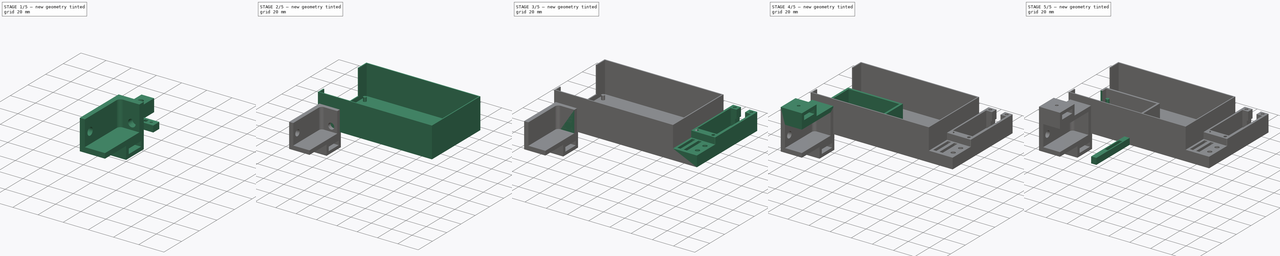
[diagram: build sequence overview — one tinted view per stage of 5, left to right]
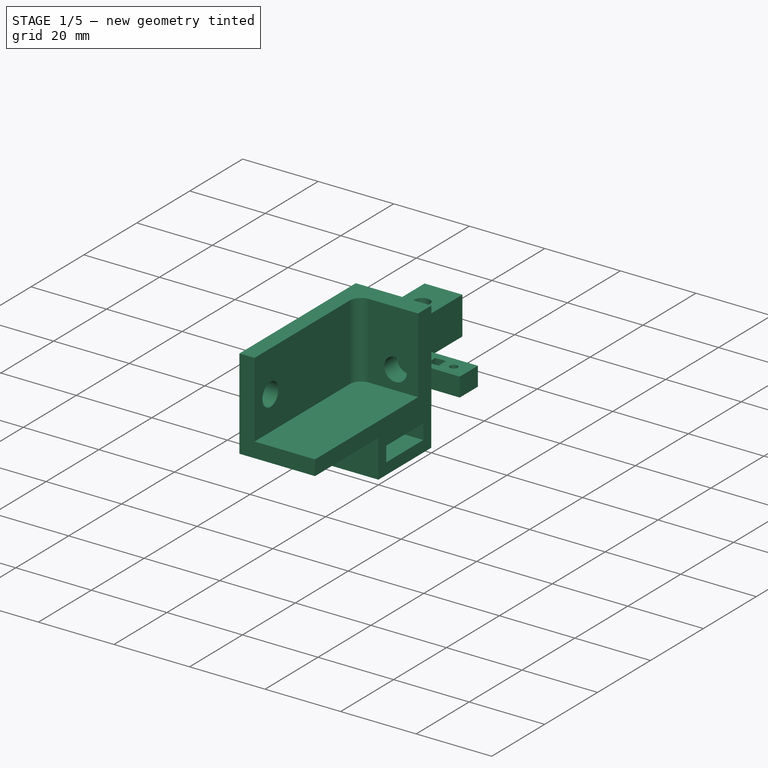
[diagram: stage 1 of 5 — iso view after this stage's code; geometry added in this stage tinted green]
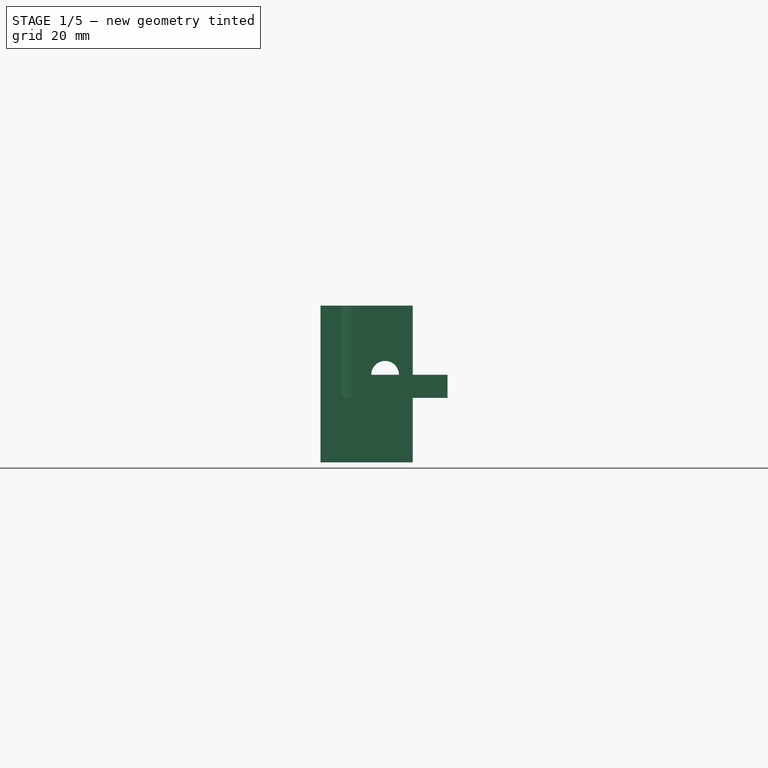
[diagram: stage 1 of 5 — front view after this stage's code; geometry added in this stage tinted green]
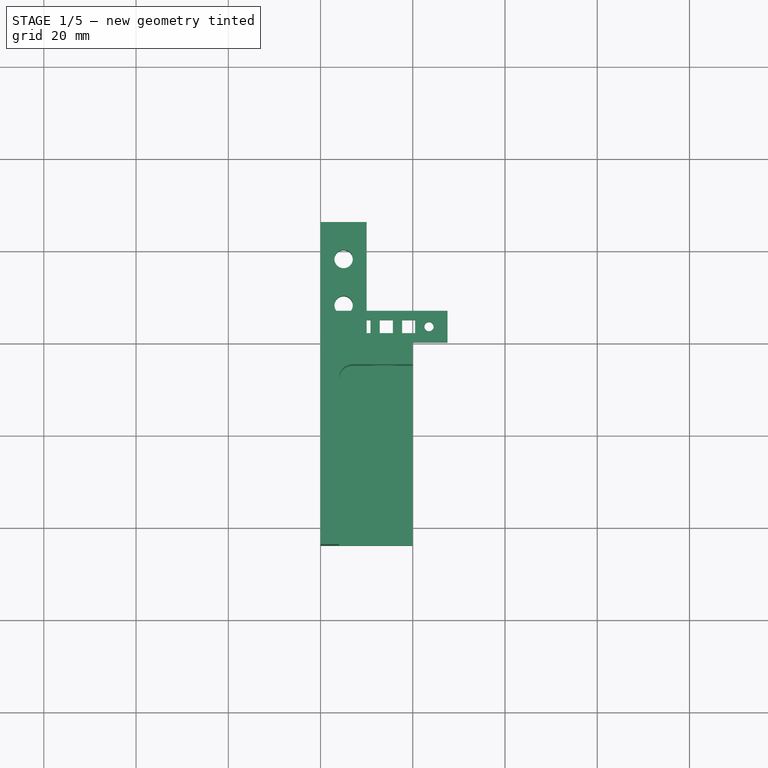
[diagram: stage 1 of 5 — top view after this stage's code; geometry added in this stage tinted green]
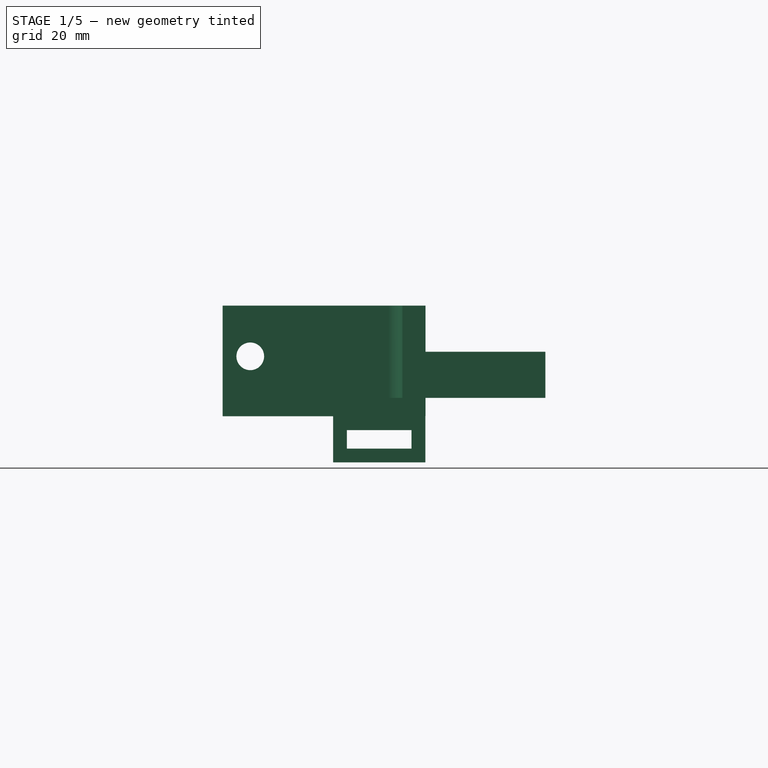
[diagram: stage 1 of 5 — right view after this stage's code; geometry added in this stage tinted green]
FCSTD DOCUMENT  (FreeCAD 1.0R39109 (Git))
Label: ArduinoNanoHolder
License: All rights reserved
LicenseURL: http://en.wikipedia.org/wiki/All_rights_reserved
objects: Sketcher::SketchObject×42, PartDesign::Pad×25, PartDesign::Pocket×14, PartDesign::Body×12, App::VarSet×5, PartDesign::Boolean×1
note: 215 computed .brp shape members not serialized (recipe doc carries the construction recipe); baked Part::Feature solids carry a one-line shape summary decoded from their .brp

FEATURE [PartDesign::Body] Body008  label="WireConnectorFemale"
  AllowCompound = false
  Group = -> [Sketch036,Pad019]
  Origin = -> Origin008
  Tip = -> Pad019
FEATURE [Sketcher::SketchObject] Sketch037  label="3holes003"
  ArcFitTolerance = 1e-06
  AttachmentSupport = -> [XY_Plane008]
  FullyConstrained = true
  MakeInternals = false
  MapMode = 5
  expr: Constraints[30] = VarSet.dupontStickHoleSize
  expr: Constraints[41] = VarSet.dupontWireConnectThickness
  expr: Constraints[42] = VarSet.dupontWireConnectThickness
  expr: Constraints[43] = VarSet.dupontWireConnectThickness
  expr: Constraints[45] = VarSet.dupontConnectCirR * 0.5
  expr: Constraints[47] = VarSet.dupontConnectCirR + 1 mm
  expr: Constraints[48] = VarSet.dupontConnectCirR + 1 mm
  expr: Constraints[49] = VarSet.dupontConnectCirR + VarSet.dupontWireConnectThickness
  expr: Constraints[50] = VarSet.dupontWireConnectorSideThickness + VarSet.dupontConnectCirR
  sketch-geometry (19):
    g0: LineSegment StartX=0 StartY=0 StartZ=0 EndX=27.52 EndY=0 EndZ=0
    g1: LineSegment StartX=27.52 StartY=0 StartZ=0 EndX=27.52 EndY=6.84 EndZ=0
    g2: LineSegment StartX=27.52 StartY=6.84 StartZ=0 EndX=0 EndY=6.84 EndZ=0
    g3: LineSegment StartX=0 StartY=6.84 StartZ=0 EndX=0 EndY=0 EndZ=0
    g4: LineSegment StartX=8 StartY=4.84 StartZ=0 EndX=8 EndY=2 EndZ=0
    g5: LineSegment StartX=8 StartY=2 StartZ=0 EndX=10.84 EndY=2 EndZ=0
    g6: LineSegment StartX=10.84 StartY=2 StartZ=0 EndX=10.84 EndY=4.84 EndZ=0
    g7: LineSegment StartX=10.84 StartY=4.84 StartZ=0 EndX=8 EndY=4.84 EndZ=0
    g8: LineSegment StartX=12.84 StartY=4.84 StartZ=0 EndX=12.84 EndY=2 EndZ=0
    g9: LineSegment StartX=12.84 StartY=2 StartZ=0 EndX=15.68 EndY=2 EndZ=0
    g10: LineSegment StartX=15.68 StartY=2 StartZ=0 EndX=15.68 EndY=4.84 EndZ=0
    g11: LineSegment StartX=15.68 StartY=4.84 StartZ=0 EndX=12.84 EndY=4.84 EndZ=0
    g12: LineSegment [constr] StartX=0 StartY=3.42 StartZ=0 EndX=27.52 EndY=3.42 EndZ=0
    g13: LineSegment StartX=17.68 StartY=4.84 StartZ=0 EndX=17.68 EndY=2 EndZ=0
    g14: LineSegment StartX=17.68 StartY=2 StartZ=0 EndX=20.52 EndY=2 EndZ=0
    g15: LineSegment StartX=20.52 StartY=2 StartZ=0 EndX=20.52 EndY=4.84 EndZ=0
    g16: LineSegment StartX=20.52 StartY=4.84 StartZ=0 EndX=17.68 EndY=4.84 EndZ=0
    g17: Circle CenterX=23.52 CenterY=3.42 CenterZ=0 NormalX=0 NormalY=0 NormalZ=1 AngleXU=0 Radius=1
    g18: Circle CenterX=5 CenterY=3.42 CenterZ=0 NormalX=0 NormalY=0 NormalZ=1 AngleXU=0 Radius=1
  constraints (52):
    c: Coincident(g0,g1)
    c: Coincident(g1,g2)
    c: Coincident(g2,g3)
    c: Coincident(g3,g0)
    c: Horizontal(g0)
    c: Horizontal(g2)
    c: Vertical(g1)
    c: Vertical(g3)
    c: Coincident(g0,g-1)
    c: Coincident(g4,g5)
    c: Coincident(g5,g6)
    c: Coincident(g6,g7)
    c: Coincident(g7,g4)
    c: Vertical(g6)
    c: Horizontal(g5)
    c: Horizontal(g7)
    c: Coincident(g8,g9)
    c: Coincident(g9,g10)
    c: Coincident(g10,g11)
    c: Coincident(g11,g8)
    c: Vertical(g10)
    c: Horizontal(g9)
    c: Horizontal(g11)
    c: Symmetric(g3,g3,g12)
    c: Symmetric(g1,g1,g12)
    c: Symmetric(g4,g4,g12)
    c: Symmetric(g8,g8,g12)
    c: Equal(g7,g4)
    c: Equal(g7,g11)
    c: Equal(g11,g8)
    c: DistanceX(g7,g7) = 2.84
    c: Coincident(g13,g14)
    c: Coincident(g14,g15)
    c: Coincident(g15,g16)
    c: Coincident(g16,g13)
    c: Vertical(g15)
    c: Horizontal(g14)
    c: Horizontal(g16)
    c: Equal(g16,g11)
    c: Equal(g13,g10)
    c: Symmetric(g13,g13,g12)
    c: DistanceX(g6,g8) = 2
    c: DistanceX(g10,g13) = 2
    c: DistanceY(g0,g4) = 2
    c: PointOnObject(g17,g12)
    c: Radius(g17) = 1
    c: PointOnObject(g18,g12)
    c: DistanceX(g18,g4) = 3
    c: DistanceX(g15,g17) = 3
    c: DistanceX(g17,g0) = 4
    c: DistanceX(g0,g18) = 5
    c: Equal(g17,g18)
FEATURE [PartDesign::Pad] Pad020  label="3holesMale"
  Direction = (0,0,1)
  Length = 5
  Length2 = 10
  Profile = -> Sketch037
  ReferenceAxis = -> Sketch037 [N_Axis]
  Refine = true
  Suppressed = false
  Type = 0
FEATURE [PartDesign::Body] Body009  label="WireConnectorMale"
  AllowCompound = false
  Group = -> [Sketch037,Pad020,Sketch038,Pad021]
  Origin = -> Origin009
  Tip = -> Pad021
FEATURE [Sketcher::SketchObject] Sketch039
  ArcFitTolerance = 1e-06
  AttachmentSupport = -> [XY_Plane010]
  FullyConstrained = true
  MakeInternals = false
  MapMode = 5
  sketch-geometry (8):
    g0: LineSegment StartX=0 StartY=0 StartZ=0 EndX=10 EndY=0 EndZ=0
    g1: LineSegment StartX=10 StartY=0 StartZ=0 EndX=10 EndY=26 EndZ=0
    g2: LineSegment StartX=10 StartY=26 StartZ=0 EndX=0 EndY=26 EndZ=0
    g3: LineSegment StartX=0 StartY=26 StartZ=0 EndX=0 EndY=0 EndZ=0
    g4: LineSegment [constr] StartX=5 StartY=18 StartZ=0 EndX=5 EndY=8 EndZ=0
    g5: LineSegment [constr] StartX=0 StartY=13 StartZ=0 EndX=10 EndY=13 EndZ=0
    g6: Circle CenterX=5 CenterY=18 CenterZ=0 NormalX=0 NormalY=0 NormalZ=1 AngleXU=0 Radius=2
    g7: Circle CenterX=5 CenterY=8 CenterZ=0 NormalX=0 NormalY=0 NormalZ=1 AngleXU=0 Radius=2
  constraints (19):
    c: Coincident(g0,g1)
    c: Coincident(g1,g2)
    c: Coincident(g2,g3)
    c: Coincident(g3,g0)
    c: Horizontal(g0)
    c: Vertical(g1)
    c: Vertical(g3)
    c: Coincident(g0,g-1)
    c: DistanceX(g2,g2) = 10
    c: DistanceY(g1,g1) = 26
    c: Symmetric(g1,g2,g4)
    c: Symmetric(g3,g3,g5)
    c: Symmetric(g1,g1,g5)
    c: Symmetric(g4,g4,g5)
    c: DistanceY(g4,g4) = 10
    c: Coincident(g6,g4)
    c: Coincident(g7,g4)
    c: Equal(g6,g7)
    c: Radius(g6) = 2
FEATURE [PartDesign::Pad] Pad022
  Direction = (0,0,1)
  Length = 10
  Length2 = 10
  Profile = -> Sketch039
  ReferenceAxis = -> Sketch039 [N_Axis]
  Refine = true
  Suppressed = false
  Type = 0
FEATURE [PartDesign::Body] Body007  label="CombinedBody"
  AllowCompound = false
  Group = -> [Boolean,Sketch033]
  Origin = -> Origin007
  Tip = -> Boolean
FEATURE [Sketcher::SketchObject] Sketch040
  ArcFitTolerance = 1e-06
  FullyConstrained = true
  MakeInternals = false
  MapMode = 5
  expr: Constraints[10] = VarSet002.thickness
  expr: Constraints[11] = VarSet002.topScrewCenter + VarSet002.lenghExt
  expr: Constraints[12] = VarSet002.sideScrewCenter + VarSet002.lenghExt
  expr: Constraints[9] = VarSet002.thickness + 1 mm
  sketch-geometry (8):
    g0: LineSegment StartX=0 StartY=-44 StartZ=0 EndX=0 EndY=0 EndZ=0
    g1: LineSegment StartX=0 StartY=0 StartZ=0 EndX=20 EndY=0 EndZ=0
    g2: LineSegment StartX=20 StartY=0 StartZ=0 EndX=20 EndY=-5 EndZ=0
    g3: LineSegment StartX=20 StartY=-5 StartZ=0 EndX=7 EndY=-5 EndZ=0
    g4: LineSegment StartX=4 StartY=-8 StartZ=0 EndX=4 EndY=-44 EndZ=0
    g5: LineSegment StartX=4 StartY=-44 StartZ=0 EndX=0 EndY=-44 EndZ=0
    g6: ArcOfCircle CenterX=7 CenterY=-8 CenterZ=0 NormalX=0 NormalY=0 NormalZ=1 AngleXU=0 Radius=3 StartAngle=1.5708 EndAngle=3.14159
    g7: GeomPoint [constr] X=4 Y=-5 Z=0
  constraints (21):
    c: Coincident(g1,g0)
    c: Horizontal(g1)
    c: Coincident(g2,g1)
    c: Vertical(g2)
    c: Coincident(g3,g2)
    c: Horizontal(g3)
    c: Vertical(g4)
    c: Coincident(g5,g4)
    c: Coincident(g5,g0)
    c: DistanceY(g2,g2) = 5
    c: DistanceX(g5,g5) = 4
    c: DistanceX(g1,g1) = 20
    c: DistanceY(g0,g0) = 44
    c: Vertical(g0)
    c: Horizontal(g4,g0)
    c: Coincident(g-1,g0)
    c: PointOnObject(g7,g3)
    c: PointOnObject(g7,g4)
    c: Tangent(g3,g6) = -1.5708
    c: Tangent(g4,g6) = -1.5708
    c: Radius(g6) = 3
FEATURE [PartDesign::Pad] Pad023
  Direction = (0,0,1)
  Length = 20
  Length2 = 10
  Profile = -> Sketch040
  ReferenceAxis = -> Sketch040 [N_Axis]
  Refine = true
  Suppressed = false
  Type = 0
  expr: Length = VarSet002.pad
FEATURE [Sketcher::SketchObject] Sketch041  label="topHole001"
  ArcFitTolerance = 1e-06
  AttachmentSupport = -> [XZ_Plane004]
  FullyConstrained = true
  MakeInternals = false
  MapMode = 5
  Placement = pos=(0,0,0) rot=(1,0,0;1.5708rad)
  expr: Constraints[2] = VarSet002.topScrewCenter
  expr: Constraints[3] = VarSet002.pad - VarSet002.wallToTopHole
  expr: Constraints[5] = VarSet002.screwHoleR
  sketch-geometry (2):
    g0: LineSegment [constr] StartX=0 StartY=5 StartZ=0 EndX=14 EndY=5 EndZ=0
    g1: Circle CenterX=14 CenterY=5 CenterZ=0 NormalX=0 NormalY=0 NormalZ=1 AngleXU=0 Radius=3
  constraints (6):
    c: PointOnObject(g0,g-2)
    c: Horizontal(g0)
    c: DistanceX(g0,g0) = 14
    c: DistanceY(g-1,g0) = 5
    c: Coincident(g1,g0)
    c: Radius(g1) = 3
FEATURE [PartDesign::Pocket] Pocket012  label="pocketTopHole001"
  BaseFeature = -> Pad023
  Direction = (0,1,-2e-16)
  Length = 5
  Length2 = 5
  Profile = -> Sketch041
  ReferenceAxis = -> Sketch041 [N_Axis]
  Refine = true
  Reversed = true
  Suppressed = false
  Type = 1
FEATURE [Sketcher::SketchObject] Sketch042  label="bottomHole001"
  ArcFitTolerance = 1e-06
  AttachmentSupport = -> [YZ_Plane004]
  FullyConstrained = true
  MakeInternals = false
  MapMode = 5
  Placement = pos=(0,0,0) rot=(0.57735,0.57735,0.57735;2.0944rad)
  expr: Constraints[0] = VarSet002.screwHoleR
  expr: Constraints[1] = VarSet002.wallToBottomHole
  expr: Constraints[2] = VarSet002.sideScrewCenter
  sketch-geometry (1):
    g0: Circle CenterX=-38 CenterY=9 CenterZ=0 NormalX=0 NormalY=0 NormalZ=1 AngleXU=0 Radius=3
  constraints (3):
    c: Radius(g0) = 3
    c: DistanceY(g-1,g0) = 9
    c: DistanceX(g0,g-1) = 38
FEATURE [PartDesign::Pocket] Pocket013
  BaseFeature = -> Pocket012
  Direction = (-1,0,0)
  Length = 5
  Length2 = 5
  Profile = -> Sketch042
  ReferenceAxis = -> Sketch042 [N_Axis]
  Refine = true
  Reversed = true
  Suppressed = false
  Type = 0
FEATURE [Sketcher::SketchObject] Sketch044  label="sideWall001"
  ArcFitTolerance = 1e-06
  AttachmentSupport = -> [YZ_Plane004]
  FullyConstrained = true
  MakeInternals = false
  MapMode = 5
  Placement = pos=(0,0,0) rot=(0.57735,0.57735,0.57735;2.0944rad)
  expr: Constraints[8] = VarSet002.sideScrewCenter + VarSet002.lenghExt
  expr: Constraints[9] = VarSet002.thickness
  sketch-geometry (4):
    g0: LineSegment StartX=-44 StartY=0 StartZ=0 EndX=-44 EndY=-4 EndZ=0
    g1: LineSegment StartX=-44 StartY=-4 StartZ=0 EndX=0 EndY=-4 EndZ=0
    g2: LineSegment StartX=0 StartY=-4 StartZ=0 EndX=0 EndY=0 EndZ=0
    g3: LineSegment StartX=0 StartY=0 StartZ=0 EndX=-44 EndY=0 EndZ=0
  constraints (11):
    c: Coincident(g0,g1)
    c: Coincident(g1,g2)
    c: Coincident(g2,g3)
    c: Coincident(g3,g0)
    c: Vertical(g0)
    c: Vertical(g2)
    c: Horizontal(g1)
    c: Horizontal(g3)
    c: DistanceX(g3,g3) = 44
    c: DistanceY(g0,g0) = 4
    c: Coincident(g2,g-1)
FEATURE [PartDesign::Pad] Pad025
  BaseFeature = -> Pocket013
  Direction = (1,0,0)
  Length = 20
  Length2 = 10
  Profile = -> Sketch044
  ReferenceAxis = -> Sketch044 [N_Axis]
  Refine = true
  Suppressed = false
  Type = 0
  expr: Length = VarSet002.topScrewCenter + VarSet002.lenghExt
FEATURE [Sketcher::SketchObject] Sketch045  label="SideHookEntrance003"
  ArcFitTolerance = 1e-06
  AttachmentSupport = -> [YZ_Plane004]
  FullyConstrained = false
  MakeInternals = false
  MapMode = 5
  Placement = pos=(0,0,0) rot=(0.57735,0.57735,0.57735;2.0944rad)
  expr: Constraints[11] = VarSet002.slideInSickness
  expr: Constraints[12] = VarSet002.slideInSickness
  expr: Constraints[13] = VarSet002.slideInSickness
  expr: Constraints[14] = VarSet002.slideInSickness
  expr: Constraints[15] = VarSet002.slideInInnerHeight
  expr: Constraints[17] = VarSet002.slideInInnerWidth
  expr: Constraints[22] = VarSet002.thickness
  sketch-geometry (8):
    g0: LineSegment StartX=-20.0416 StartY=-14 StartZ=0 EndX=-0.041618 EndY=-14 EndZ=0
    g1: LineSegment StartX=-0.041618 StartY=-14 StartZ=0 EndX=-0.041618 EndY=-4 EndZ=0
    g2: LineSegment StartX=-17.0416 StartY=-7 StartZ=0 EndX=-17.0416 EndY=-11 EndZ=0
    g3: LineSegment StartX=-17.0416 StartY=-11 StartZ=0 EndX=-3.04162 EndY=-11 EndZ=0
    g4: LineSegment StartX=-3.04162 StartY=-11 StartZ=0 EndX=-3.04162 EndY=-7 EndZ=0
    g5: LineSegment StartX=-3.04162 StartY=-7 StartZ=0 EndX=-17.0416 EndY=-7 EndZ=0
    g6: LineSegment StartX=-20.0416 StartY=-4 StartZ=0 EndX=-20.0416 EndY=-14 EndZ=0
    g7: LineSegment StartX=-20.0416 StartY=-4 StartZ=0 EndX=-0.041618 EndY=-4 EndZ=0
  constraints (23):
    c: Coincident(g0,g1)
    c: Vertical(g1)
    c: Horizontal(g0)
    c: Coincident(g2,g3)
    c: Coincident(g3,g4)
    c: Coincident(g4,g5)
    c: Coincident(g5,g2)
    c: Vertical(g2)
    c: Vertical(g4)
    c: Horizontal(g3)
    c: Horizontal(g5)
    c: DistanceX(g6,g2) = 3
    c: DistanceX(g4,g1) = 3
    c: DistanceY(g2,g6) = 3
    c: DistanceY(g0,g2) = 3
    c: DistanceY(g2,g2) = 4
    c: Coincident(g6,g0)
    c: DistanceX(g5,g5) = 14
    c: Vertical(g6)
    c: Coincident(g7,g6)
    c: Coincident(g7,g1)
    c: Horizontal(g7)
    c: DistanceY(g1,g-1) = 4
FEATURE [PartDesign::Pad] Pad026  label="PadSideSlidin001"
  BaseFeature = -> Pad025
  Direction = (1,0,0)
  Length = 20
  Length2 = 10
  Profile = -> Sketch045
  ReferenceAxis = -> Sketch045 [N_Axis]
  Refine = true
  Suppressed = false
  Type = 0
  expr: Length = VarSet002.topScrewCenter + VarSet002.lenghExt
FEATURE [Sketcher::SketchObject] Sketch046  label="slideIndTightenScrewHow001"
  ArcFitTolerance = 1e-06
  AttachmentOffset = pos=(0,0,34) rot=(0,0,1;0rad)
  FullyConstrained = true
  MakeInternals = false
  MapMode = 5
  Placement = pos=(0,0,-8) rot=(0,0,1;0rad)
  expr: .AttachmentOffset.Base.z = VarSet002.pad + VarSet002.thickness + VarSet002.slideInInnerHeight + VarSet002.slideInSickness * 2
  expr: .Placement.Base.z = -VarSet002.thickness * 2
  expr: Constraints[6] = (VarSet002.topScrewCenter + VarSet002.lenghExt) / 2
  sketch-geometry (3):
    g0: Circle CenterX=10 CenterY=-15 CenterZ=0 NormalX=0 NormalY=0 NormalZ=1 AngleXU=0 Radius=1.4
    g1: LineSegment [constr] StartX=10 StartY=-15 StartZ=0 EndX=10 EndY=-5 EndZ=0
    g2: Circle CenterX=10 CenterY=-5 CenterZ=0 NormalX=0 NormalY=0 NormalZ=1 AngleXU=0 Radius=1.4
  constraints (8):
    c: Radius(g0) = 1.4
    c: Vertical(g1)
    c: DistanceY(g1,g1) = 10
    c: Coincident(g0,g1)
    c: Coincident(g2,g1)
    c: Equal(g0,g2)
    c: DistanceX(g-1,g1) = 10
    c: DistanceY(g1,g-1) = 5
FEATURE [PartDesign::Pocket] Pocket014  label="slideIndTightenScrew001"
  BaseFeature = -> Pad026
  Direction = (0,0,-1)
  Length = 5
  Length2 = 5
  Profile = -> Sketch046
  ReferenceAxis = -> Sketch046 [N_Axis]
  Refine = true
  Suppressed = false
  Type = 1
FEATURE [PartDesign::Body] Body011  label="WindowStickerRightSide"
  AllowCompound = false
  Group = -> [Sketch040,Pad023,Sketch041,Pocket012,Sketch042,Pocket013,Sketch044,Pad025,Sketch045,Pad026,Sketch046,Pocket014]
  Origin = -> Origin011
  Tip = -> Pocket014
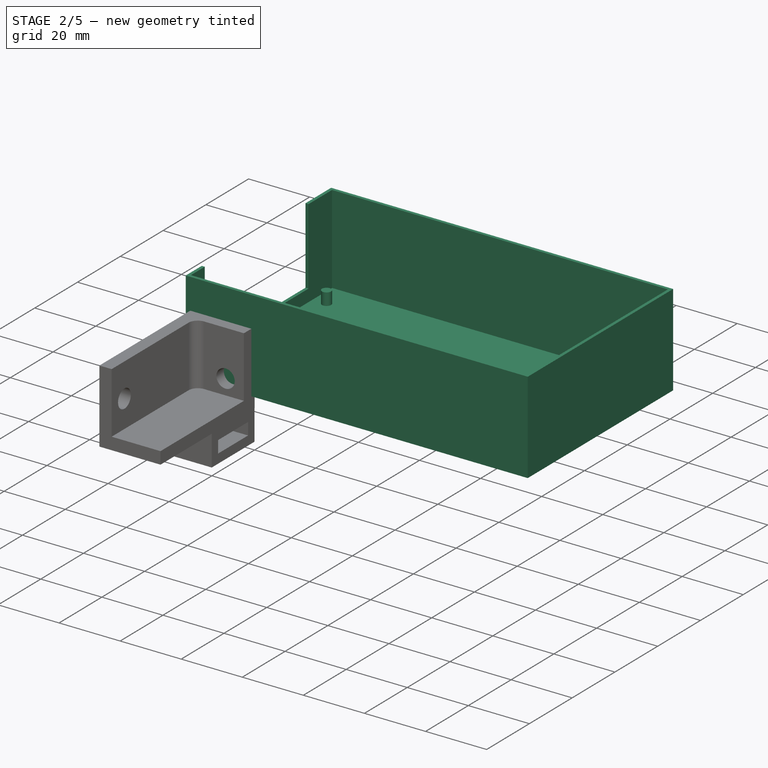
[diagram: stage 2 of 5 — iso view after this stage's code; geometry added in this stage tinted green]
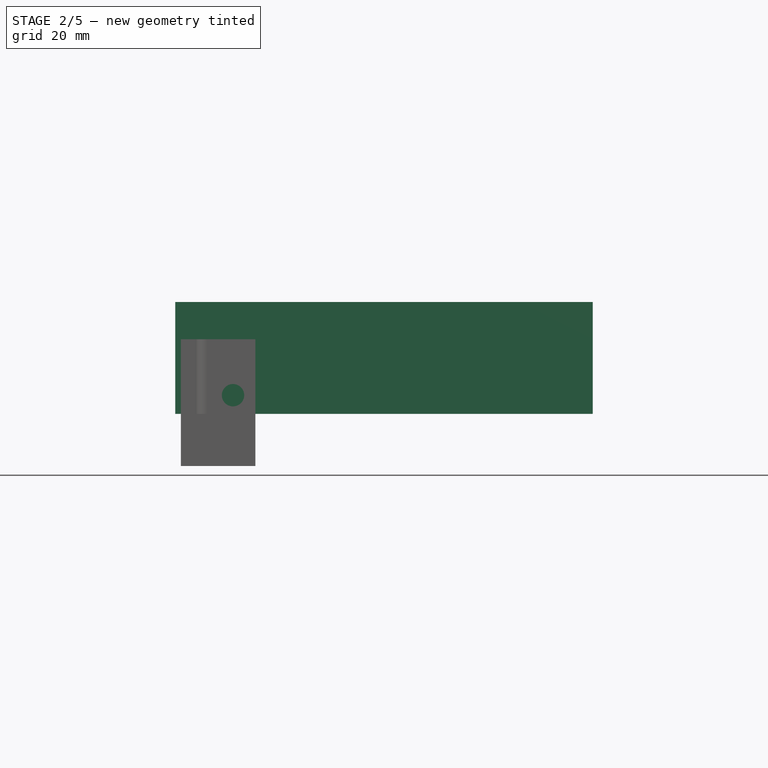
[diagram: stage 2 of 5 — front view after this stage's code; geometry added in this stage tinted green]
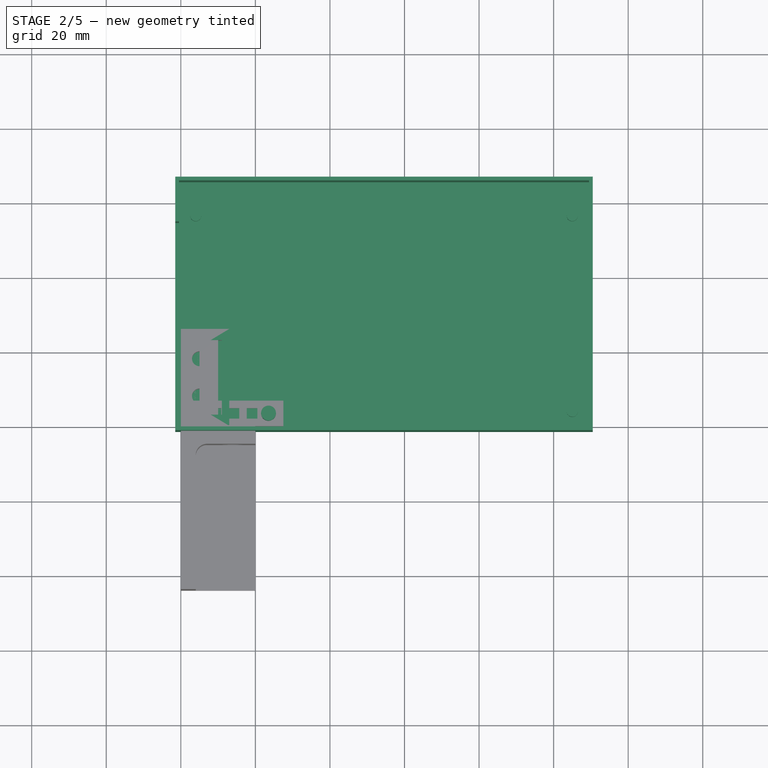
[diagram: stage 2 of 5 — top view after this stage's code; geometry added in this stage tinted green]
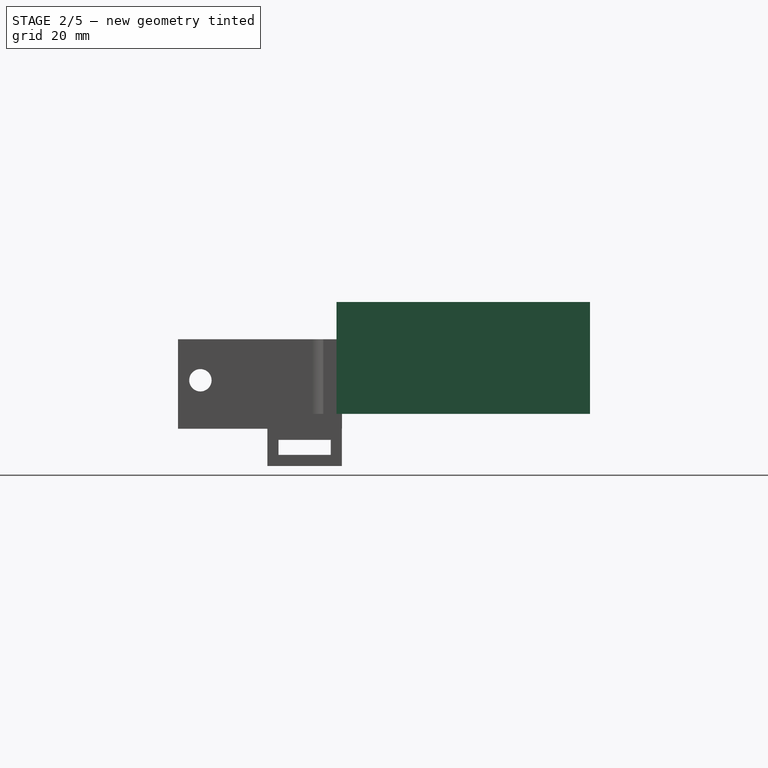
[diagram: stage 2 of 5 — right view after this stage's code; geometry added in this stage tinted green]
FEATURE [PartDesign::Body] Body004  label="WindowSticker"
  AllowCompound = false
  Group = -> [Sketch021,Pad009,Sketch023,Pocket008,Sketch024,Pocket009,Sketch025,Pad010,Sketch026,Pad011,Sketch027,Pad012,Sketch028,Pocket010]
  Origin = -> Origin004
  Tip = -> Pocket010
FEATURE [App::VarSet] VarSet003
  baseSideAdj = 0.5
  baseWallThickness = 1
  bigDriveControllerWidth = 109
  bigMotorControllerHeight = 65
  bigMotorControllerSidePollR = 1.5
  bigMotorControllerSidePollToSide = 4
  bigMotorControllerSidePollToSideLong = 9
  distBetweenHeightScrewHole = 52.5
  expr: bigMotorControllerSidePollToSideLong = bigMotorControllerSidePollToSide + 5 mm
FEATURE [Sketcher::SketchObject] Sketch029  label="base"
  ArcFitTolerance = 1e-06
  AttachmentSupport = -> [XY_Plane005]
  FullyConstrained = true
  MakeInternals = false
  MapMode = 5
  expr: Constraints[17] = VarSet003.bigDriveControllerWidth - VarSet003.bigMotorControllerSidePollToSide * 2
  expr: Constraints[18] = VarSet003.baseSideAdj
  expr: Constraints[19] = VarSet003.baseSideAdj
  expr: Constraints[20] = VarSet003.bigMotorControllerSidePollToSide
  expr: Constraints[21] = VarSet003.bigMotorControllerSidePollToSide
  expr: Constraints[22] = VarSet003.distBetweenHeightScrewHole
  expr: Constraints[23] = VarSet003.bigMotorControllerSidePollToSide + VarSet003.baseSideAdj
  expr: Constraints[8] = VarSet003.bigMotorControllerHeight + VarSet003.baseSideAdj * 2
  sketch-geometry (8):
    g0: LineSegment StartX=-0.5 StartY=-0.5 StartZ=0 EndX=109.5 EndY=-0.5 EndZ=0
    g1: LineSegment StartX=109.5 StartY=-0.5 StartZ=0 EndX=109.5 EndY=65.5 EndZ=0
    g2: LineSegment StartX=109.5 StartY=65.5 StartZ=0 EndX=-0.5 EndY=65.5 EndZ=0
    g3: LineSegment StartX=-0.5 StartY=65.5 StartZ=0 EndX=-0.5 EndY=-0.5 EndZ=0
    g4: LineSegment [constr] StartX=4 StartY=56.5 StartZ=0 EndX=4 EndY=4 EndZ=0
    g5: LineSegment [constr] StartX=4 StartY=56.5 StartZ=0 EndX=105 EndY=56.5 EndZ=0
    g6: LineSegment [constr] StartX=105 StartY=56.5 StartZ=0 EndX=105 EndY=4 EndZ=0
    g7: LineSegment [constr] StartX=105 StartY=4 StartZ=0 EndX=4 EndY=4 EndZ=0
  constraints (24):
    c: Coincident(g0,g1)
    c: Coincident(g1,g2)
    c: Coincident(g2,g3)
    c: Coincident(g3,g0)
    c: Horizontal(g0)
    c: Horizontal(g2)
    c: Vertical(g1)
    c: Vertical(g3)
    c: DistanceY(g3,g3) = 66
    c: Vertical(g4)
    c: Coincident(g5,g4)
    c: Horizontal(g5)
    c: Coincident(g6,g5)
    c: Vertical(g6)
    c: Coincident(g7,g6)
    c: Coincident(g7,g4)
    c: Horizontal(g7)
    c: DistanceX(g7,g7) = 101
    c: DistanceX(g0,g-1) = 0.5
    c: DistanceY(g0,g-1) = 0.5
    c: DistanceX(g-1,g4) = 4
    c: DistanceY(g-1,g4) = 4
    c: DistanceY(g4,g4) = 52.5
    c: DistanceX(g6,g0) = 4.5
FEATURE [PartDesign::Pad] Pad013  label="base002"
  Direction = (0,0,1)
  Length = 1
  Length2 = 10
  Profile = -> Sketch029
  ReferenceAxis = -> Sketch029 [N_Axis]
  Refine = true
  Suppressed = false
  Type = 0
FEATURE [Sketcher::SketchObject] Sketch030  label="base001"
  ArcFitTolerance = 1e-06
  AttachmentSupport = -> [XY_Plane005]
  FullyConstrained = true
  MakeInternals = false
  MapMode = 5
  expr: Constraints[12] = VarSet003.bigMotorControllerSidePollR
  expr: Constraints[13] = VarSet003.bigMotorControllerSidePollToSide
  expr: Constraints[14] = VarSet003.bigMotorControllerSidePollToSide
  expr: Constraints[15] = VarSet003.distBetweenHeightScrewHole
  expr: Constraints[8] = VarSet003.bigDriveControllerWidth - VarSet003.bigMotorControllerSidePollToSide * 2
  sketch-geometry (8):
    g0: LineSegment [constr] StartX=4 StartY=56.5 StartZ=0 EndX=4 EndY=4 EndZ=0
    g1: LineSegment [constr] StartX=4 StartY=56.5 StartZ=0 EndX=105 EndY=56.5 EndZ=0
    g2: LineSegment [constr] StartX=105 StartY=56.5 StartZ=0 EndX=105 EndY=4 EndZ=0
    g3: LineSegment [constr] StartX=105 StartY=4 StartZ=0 EndX=4 EndY=4 EndZ=0
    g4: Circle CenterX=4 CenterY=56.5 CenterZ=0 NormalX=0 NormalY=0 NormalZ=1 AngleXU=0 Radius=1.5
    g5: Circle CenterX=4 CenterY=4 CenterZ=0 NormalX=0 NormalY=0 NormalZ=1 AngleXU=0 Radius=1.5
    g6: Circle CenterX=105 CenterY=56.5 CenterZ=0 NormalX=0 NormalY=0 NormalZ=1 AngleXU=0 Radius=1.5
    g7: Circle CenterX=105 CenterY=4 CenterZ=0 NormalX=0 NormalY=0 NormalZ=1 AngleXU=0 Radius=1.5
  constraints (20):
    c: Vertical(g0)
    c: Coincident(g1,g0)
    c: Horizontal(g1)
    c: Coincident(g2,g1)
    c: Vertical(g2)
    c: Coincident(g3,g2)
    c: Coincident(g3,g0)
    c: Horizontal(g3)
    c: DistanceX(g3,g3) = 101
    c: Coincident(g4,g0)
    c: Coincident(g5,g0)
    c: Equal(g4,g5)
    c: Radius(g4) = 1.5
    c: DistanceX(g-1,g0) = 4
    c: DistanceY(g-1,g0) = 4
    c: DistanceY(g0,g0) = 52.5
    c: Coincident(g6,g1)
    c: Coincident(g7,g2)
    c: Equal(g4,g6)
    c: Equal(g7,g6)
FEATURE [PartDesign::Pad] Pad014  label="rods002"
  BaseFeature = -> Pad013
  Direction = (0,0,1)
  Length = 5
  Length2 = 10
  Profile = -> Sketch030
  ReferenceAxis = -> Sketch030 [N_Axis]
  Refine = true
  Suppressed = false
  Type = 0
FEATURE [Sketcher::SketchObject] Sketch031
  ArcFitTolerance = 1e-06
  AttachmentSupport = -> [XY_Plane005]
  FullyConstrained = true
  MakeInternals = false
  MapMode = 5
  expr: Constraints[10] = VarSet003.baseSideAdj
  expr: Constraints[11] = VarSet003.baseSideAdj
  expr: Constraints[16] = VarSet003.baseWallThickness
  expr: Constraints[17] = VarSet003.bigMotorControllerHeight + VarSet003.baseSideAdj
  expr: Constraints[22] = VarSet003.baseWallThickness
  expr: Constraints[23] = VarSet003.bigDriveControllerWidth + VarSet003.baseSideAdj
  expr: Constraints[8] = VarSet003.baseWallThickness
  expr: Constraints[9] = VarSet003.baseWallThickness
  sketch-geometry (8):
    g0: LineSegment StartX=-1.5 StartY=66.5 StartZ=0 EndX=-1.5 EndY=-1.5 EndZ=0
    g1: LineSegment StartX=-0.5 StartY=-0.5 StartZ=0 EndX=-0.5 EndY=65.5 EndZ=0
    g2: LineSegment StartX=110.5 StartY=66.5 StartZ=0 EndX=-1.5 EndY=66.5 EndZ=0
    g3: LineSegment StartX=-1.5 StartY=-1.5 StartZ=0 EndX=110.5 EndY=-1.5 EndZ=0
    g4: LineSegment StartX=109.5 StartY=-0.5 StartZ=0 EndX=-0.5 EndY=-0.5 EndZ=0
    g5: LineSegment StartX=-0.5 StartY=65.5 StartZ=0 EndX=109.5 EndY=65.5 EndZ=0
    g6: LineSegment StartX=110.5 StartY=66.5 StartZ=0 EndX=110.5 EndY=-1.5 EndZ=0
    g7: LineSegment StartX=109.5 StartY=65.5 StartZ=0 EndX=109.5 EndY=-0.5 EndZ=0
  constraints (24):
    c: Coincident(g2,g0)
    c: Vertical(g0)
    c: Vertical(g1)
    c: Horizontal(g2)
    c: Horizontal(g3)
    c: Horizontal(g4)
    c: Coincident(g1,g4)
    c: Coincident(g3,g0)
    c: DistanceY(g0,g1) = 1
    c: DistanceX(g0,g1) = 1
    c: DistanceX(g1,g-1) = 0.5
    c: DistanceY(g1,g-1) = 0.5
    c: Horizontal(g5)
    c: Coincident(g1,g5)
    c: Coincident(g6,g2)
    c: Vertical(g6)
    c: DistanceY(g1,g0) = 1
    c: DistanceY(g-1,g1) = 65.5
    c: Vertical(g7)
    c: Coincident(g5,g7)
    c: Coincident(g4,g7)
    c: Coincident(g6,g3)
    c: DistanceX(g4,g3) = 1
    c: DistanceX(g-1,g4) = 109.5
FEATURE [PartDesign::Pad] Pad015
  BaseFeature = -> Pad014
  Direction = (0,0,1)
  Length = 30
  Length2 = 10
  Profile = -> Sketch031
  ReferenceAxis = -> Sketch031 [N_Axis]
  Refine = true
  Suppressed = false
  Type = 0
FEATURE [Sketcher::SketchObject] Sketch032
  ArcFitTolerance = 1e-06
  AttachmentSupport = -> [XY_Plane006]
  FullyConstrained = true
  MakeInternals = false
  MapMode = 5
  sketch-geometry (14):
    g0: LineSegment StartX=0 StartY=0 StartZ=0 EndX=13 EndY=0 EndZ=0
    g1: LineSegment StartX=13 StartY=0 StartZ=0 EndX=13 EndY=26 EndZ=0
    g2: LineSegment StartX=13 StartY=26 StartZ=0 EndX=0 EndY=26 EndZ=0
    g3: LineSegment StartX=0 StartY=26 StartZ=0 EndX=0 EndY=0 EndZ=0
    g4: LineSegment StartX=2 StartY=23 StartZ=0 EndX=2 EndY=3 EndZ=0
    g5: LineSegment StartX=2 StartY=3 StartZ=0 EndX=5 EndY=3 EndZ=0
    g6: LineSegment StartX=5 StartY=3 StartZ=0 EndX=5 EndY=23 EndZ=0
    g7: LineSegment StartX=5 StartY=23 StartZ=0 EndX=2 EndY=23 EndZ=0
    g8: LineSegment StartX=8 StartY=23 StartZ=0 EndX=8 EndY=3 EndZ=0
    g9: LineSegment StartX=8 StartY=3 StartZ=0 EndX=11 EndY=3 EndZ=0
    g10: LineSegment StartX=11 StartY=3 StartZ=0 EndX=11 EndY=23 EndZ=0
    g11: LineSegment StartX=11 StartY=23 StartZ=0 EndX=8 EndY=23 EndZ=0
    g12: LineSegment [constr] StartX=5 StartY=23 StartZ=0 EndX=8 EndY=23 EndZ=0
    g13: LineSegment [constr] StartX=5 StartY=3 StartZ=0 EndX=8 EndY=3 EndZ=0
  constraints (39):
    c: Coincident(g0,g1)
    c: Coincident(g1,g2)
    c: Coincident(g2,g3)
    c: Coincident(g3,g0)
    c: Horizontal(g0)
    c: Horizontal(g2)
    c: Vertical(g1)
    c: Vertical(g3)
    c: Coincident(g0,g-1)
    c: Coincident(g4,g5)
    c: Coincident(g5,g6)
    c: Coincident(g6,g7)
    c: Coincident(g7,g4)
    c: Vertical(g4)
    c: Vertical(g6)
    c: Horizontal(g5)
    c: Horizontal(g7)
    c: Coincident(g8,g9)
    c: Coincident(g9,g10)
    c: Coincident(g10,g11)
    c: Coincident(g11,g8)
    c: Vertical(g8)
    c: Vertical(g10)
    c: Horizontal(g9)
    c: Horizontal(g11)
    c: Equal(g8,g6)
    c: Coincident(g12,g6)
    c: Coincident(g12,g8)
    c: Coincident(g13,g5)
    c: Coincident(g13,g8)
    c: Horizontal(g12)
    c: DistanceY(g4,g4) = 20
    c: Equal(g11,g7)
    c: DistanceX(g7,g7) = 3
    c: DistanceX(g12,g12) = 3
    c: DistanceY(g4,g2) = 3
    c: DistanceY(g0,g4) = 3
    c: DistanceX(g2,g4) = 2
    c: DistanceX(g10,g1) = 2
FEATURE [PartDesign::Pad] Pad016
  Direction = (0,0,1)
  Length = 10
  Length2 = 10
  Profile = -> Sketch032
  ReferenceAxis = -> Sketch032 [N_Axis]
  Refine = true
  Suppressed = false
  Type = 0
FEATURE [App::VarSet] VarSet004
  dupontFemaleWidth = 2.75
  thickness = 2
FEATURE [Sketcher::SketchObject] Sketch033
  ArcFitTolerance = 1e-06
  AttachmentSupport = -> [XY_Plane007]
  FullyConstrained = false
  MakeInternals = false
  MapMode = 5
  expr: Constraints[18] = VarSet004.dupontFemaleWidth + 0.08 mm
  sketch-geometry (17):
    g0: LineSegment StartX=0.31703 StartY=7.96904 StartZ=0 EndX=0.31703 EndY=0.78155 EndZ=0
    g1: LineSegment StartX=0.31703 StartY=0.78155 StartZ=0 EndX=18.4807 EndY=0.78155 EndZ=0
    g2: LineSegment StartX=18.4807 StartY=0.78155 StartZ=0 EndX=18.4807 EndY=7.96904 EndZ=0
    g3: LineSegment StartX=18.4807 StartY=7.96904 StartZ=0 EndX=0.31703 EndY=7.96904 EndZ=0
    g4: LineSegment [constr] StartX=0.31703 StartY=4.3753 StartZ=0 EndX=18.4807 EndY=4.3753 EndZ=0
    g5: LineSegment StartX=3.63184 StartY=5.7903 StartZ=0 EndX=3.63184 EndY=2.9603 EndZ=0
    g6: LineSegment StartX=3.63184 StartY=2.9603 StartZ=0 EndX=6.46184 EndY=2.9603 EndZ=0
    g7: LineSegment StartX=6.46184 StartY=2.9603 StartZ=0 EndX=6.46184 EndY=5.7903 EndZ=0
    g8: LineSegment StartX=6.46184 StartY=5.7903 StartZ=0 EndX=3.63184 EndY=5.7903 EndZ=0
    g9: LineSegment StartX=8.46184 StartY=5.7953 StartZ=0 EndX=8.46184 EndY=2.9553 EndZ=0
    g10: LineSegment StartX=8.46184 StartY=2.9553 StartZ=0 EndX=11.3018 EndY=2.9553 EndZ=0
    g11: LineSegment StartX=11.3018 StartY=2.9553 StartZ=0 EndX=11.3018 EndY=5.7953 EndZ=0
    g12: LineSegment StartX=11.3018 StartY=5.7953 StartZ=0 EndX=8.46184 EndY=5.7953 EndZ=0
    g13: LineSegment StartX=12.9785 StartY=5.8003 StartZ=0 EndX=12.9785 EndY=2.9503 EndZ=0
    g14: LineSegment StartX=12.9785 StartY=2.9503 StartZ=0 EndX=15.8285 EndY=2.9503 EndZ=0
    g15: LineSegment StartX=15.8285 StartY=2.9503 StartZ=0 EndX=15.8285 EndY=5.8003 EndZ=0
    g16: LineSegment StartX=15.8285 StartY=5.8003 StartZ=0 EndX=12.9785 EndY=5.8003 EndZ=0
  constraints (41):
    c: Coincident(g0,g1)
    c: Coincident(g1,g2)
    c: Coincident(g2,g3)
    c: Coincident(g3,g0)
    c: Vertical(g0)
    c: Vertical(g2)
    c: Horizontal(g1)
    c: Horizontal(g3)
    c: Symmetric(g0,g0,g4)
    c: Symmetric(g2,g2,g4)
    c: Coincident(g5,g6)
    c: Coincident(g6,g7)
    c: Coincident(g7,g8)
    c: Coincident(g8,g5)
    c: Vertical(g7)
    c: Horizontal(g6)
    c: Horizontal(g8)
    c: Symmetric(g5,g5,g4)
    c: DistanceX(g8,g8) = 2.83
    c: Coincident(g9,g10)
    c: Coincident(g10,g11)
    c: Coincident(g11,g12)
    c: Coincident(g12,g9)
    c: Vertical(g11)
    c: Horizontal(g10)
    c: Horizontal(g12)
    c: DistanceX(g12,g12) = 2.84
    c: Symmetric(g9,g9,g4)
    c: Equal(g12,g9)
    c: Equal(g8,g5)
    c: DistanceX(g7,g9) = 2
    c: Coincident(g13,g14)
    c: Coincident(g14,g15)
    c: Coincident(g15,g16)
    c: Coincident(g16,g13)
    c: Vertical(g15)
    c: Horizontal(g14)
    c: Horizontal(g16)
    c: Symmetric(g13,g13,g4)
    c: Equal(g16,g13)
    c: DistanceX(g16,g16) = 2.85
FEATURE [Sketcher::SketchObject] Sketch034
  ArcFitTolerance = 1e-06
  AttachmentSupport = -> [XY_Plane006]
  ExternalGeometry = -> [Pad016]
  FullyConstrained = true
  MakeInternals = false
  MapMode = 5
  sketch-geometry (4):
    g0: LineSegment StartX=13 StartY=26 StartZ=0 EndX=0 EndY=26 EndZ=0
    g1: LineSegment StartX=0 StartY=26 StartZ=0 EndX=0 EndY=0 EndZ=0
    g2: LineSegment StartX=0 StartY=0 StartZ=0 EndX=13 EndY=0 EndZ=0
    g3: LineSegment StartX=13 StartY=0 StartZ=0 EndX=13 EndY=26 EndZ=0
  constraints (10):
    c: Coincident(g0,g1)
    c: Coincident(g1,g2)
    c: Coincident(g2,g3)
    c: Coincident(g3,g0)
    c: Horizontal(g0)
    c: Horizontal(g2)
    c: Vertical(g1)
    c: Vertical(g3)
    c: Coincident(g0,g-3)
    c: Coincident(g1,g-1)
FEATURE [PartDesign::Pad] Pad018
  BaseFeature = -> Pad016
  Direction = (0,0,1)
  Length = 1
  Length2 = 10
  Profile = -> Sketch034
  ReferenceAxis = -> Sketch034 [N_Axis]
  Refine = true
  Suppressed = false
  Type = 0
FEATURE [PartDesign::Body] Body006  label="doubleWireHolder"
  AllowCompound = false
  Group = -> [Sketch032,Pad016,Sketch034,Pad018]
  Origin = -> Origin006
  Placement = pos=(110.5,-1.5,0) rot=(0,0,1;0rad)
  Tip = -> Pad018
FEATURE [Sketcher::SketchObject] Sketch035
  ArcFitTolerance = 1e-06
  AttachmentOffset = pos=(0,0,30) rot=(0,0,1;0rad)
  AttachmentSupport = -> [XY_Plane005]
  FullyConstrained = true
  MakeInternals = false
  MapMode = 5
  Placement = pos=(0,0,30) rot=(0,0,1;0rad)
  expr: Constraints[10] = VarSet003.bigMotorControllerSidePollToSide + 2 mm
  expr: Constraints[11] = VarSet003.distBetweenHeightScrewHole - 4 mm
  expr: Constraints[8] = VarSet003.baseSideAdj
  expr: Constraints[9] = VarSet003.baseWallThickness
  sketch-geometry (4):
    g0: LineSegment StartX=-1.5 StartY=6 StartZ=0 EndX=-0.5 EndY=6 EndZ=0
    g1: LineSegment StartX=-0.5 StartY=6 StartZ=0 EndX=-0.5 EndY=54.5 EndZ=0
    g2: LineSegment StartX=-0.5 StartY=54.5 StartZ=0 EndX=-1.5 EndY=54.5 EndZ=0
    g3: LineSegment StartX=-1.5 StartY=54.5 StartZ=0 EndX=-1.5 EndY=6 EndZ=0
  constraints (12):
    c: Coincident(g0,g1)
    c: Coincident(g1,g2)
    c: Coincident(g2,g3)
    c: Coincident(g3,g0)
    c: Horizontal(g0)
    c: Horizontal(g2)
    c: Vertical(g1)
    c: Vertical(g3)
    c: DistanceX(g0,g-1) = 0.5
    c: DistanceX(g0,g0) = 1
    c: DistanceY(g-1,g0) = 6
    c: DistanceY(g3,g3) = 48.5
FEATURE [PartDesign::Pocket] Pocket011
  BaseFeature = -> Pad015
  Direction = (0,0,-1)
  Length = 25
  Length2 = 5
  Profile = -> Sketch035
  ReferenceAxis = -> Sketch035 [N_Axis]
  Refine = true
  Suppressed = false
  Type = 0
FEATURE [PartDesign::Body] Body005  label="bigMotorControllerBox"
  AllowCompound = false
  Group = -> [Sketch029,Pad013,Sketch030,Pad014,Sketch031,Pad015,Sketch035,Pocket011]
  Origin = -> Origin005
  Tip = -> Pocket011
FEATURE [Sketcher::SketchObject] Sketch036  label="3holes"
  ArcFitTolerance = 1e-06
  AttachmentSupport = -> [XY_Plane008]
  FullyConstrained = true
  MakeInternals = false
  MapMode = 5
  expr: Constraints[30] = VarSet.dupontStickHoleSize
  expr: Constraints[41] = VarSet.dupontWireConnectThickness
  expr: Constraints[42] = VarSet.dupontWireConnectThickness
  expr: Constraints[43] = VarSet.dupontWireConnectThickness
  expr: Constraints[45] = VarSet.dupontConnectCirR + VarSet.dupontConnectCirAdj
  expr: Constraints[48] = VarSet.dupontConnectCirR + 1 mm
  expr: Constraints[49] = VarSet.dupontConnectCirR + 1 mm
  expr: Constraints[50] = VarSet.dupontConnectCirR + VarSet.dupontWireConnectThickness
  expr: Constraints[51] = VarSet.dupontWireConnectorSideThickness + VarSet.dupontConnectCirR
  sketch-geometry (19):
    g0: LineSegment StartX=0 StartY=0 StartZ=0 EndX=27.52 EndY=0 EndZ=0
    g1: LineSegment StartX=27.52 StartY=0 StartZ=0 EndX=27.52 EndY=6.84 EndZ=0
    g2: LineSegment StartX=27.52 StartY=6.84 StartZ=0 EndX=0 EndY=6.84 EndZ=0
    g3: LineSegment StartX=0 StartY=6.84 StartZ=0 EndX=0 EndY=0 EndZ=0
    g4: LineSegment StartX=8 StartY=4.84 StartZ=0 EndX=8 EndY=2 EndZ=0
    g5: LineSegment StartX=8 StartY=2 StartZ=0 EndX=10.84 EndY=2 EndZ=0
    g6: LineSegment StartX=10.84 StartY=2 StartZ=0 EndX=10.84 EndY=4.84 EndZ=0
    g7: LineSegment StartX=10.84 StartY=4.84 StartZ=0 EndX=8 EndY=4.84 EndZ=0
    g8: LineSegment StartX=12.84 StartY=4.84 StartZ=0 EndX=12.84 EndY=2 EndZ=0
    g9: LineSegment StartX=12.84 StartY=2 StartZ=0 EndX=15.68 EndY=2 EndZ=0
    g10: LineSegment StartX=15.68 StartY=2 StartZ=0 EndX=15.68 EndY=4.84 EndZ=0
    g11: LineSegment StartX=15.68 StartY=4.84 StartZ=0 EndX=12.84 EndY=4.84 EndZ=0
    g12: LineSegment [constr] StartX=0 StartY=3.42 StartZ=0 EndX=27.52 EndY=3.42 EndZ=0
    g13: LineSegment StartX=17.68 StartY=4.84 StartZ=0 EndX=17.68 EndY=2 EndZ=0
    g14: LineSegment StartX=17.68 StartY=2 StartZ=0 EndX=20.52 EndY=2 EndZ=0
    g15: LineSegment StartX=20.52 StartY=2 StartZ=0 EndX=20.52 EndY=4.84 EndZ=0
    g16: LineSegment StartX=20.52 StartY=4.84 StartZ=0 EndX=17.68 EndY=4.84 EndZ=0
    g17: Circle CenterX=23.52 CenterY=3.42 CenterZ=0 NormalX=0 NormalY=0 NormalZ=1 AngleXU=0 Radius=2.04
    g18: Circle CenterX=5 CenterY=3.42 CenterZ=0 NormalX=0 NormalY=0 NormalZ=1 AngleXU=0 Radius=2
  constraints (52):
    c: Coincident(g0,g1)
    c: Coincident(g1,g2)
    c: Coincident(g2,g3)
    c: Coincident(g3,g0)
    c: Horizontal(g0)
    c: Horizontal(g2)
    c: Vertical(g1)
    c: Vertical(g3)
    c: Coincident(g0,g-1)
    c: Coincident(g4,g5)
    c: Coincident(g5,g6)
    c: Coincident(g6,g7)
    c: Coincident(g7,g4)
    c: Vertical(g6)
    c: Horizontal(g5)
    c: Horizontal(g7)
    c: Coincident(g8,g9)
    c: Coincident(g9,g10)
    c: Coincident(g10,g11)
    c: Coincident(g11,g8)
    c: Vertical(g10)
    c: Horizontal(g9)
    c: Horizontal(g11)
    c: Symmetric(g3,g3,g12)
    c: Symmetric(g1,g1,g12)
    c: Symmetric(g4,g4,g12)
    c: Symmetric(g8,g8,g12)
    c: Equal(g7,g4)
    c: Equal(g7,g11)
    c: Equal(g11,g8)
    c: DistanceX(g7,g7) = 2.84
    c: Coincident(g13,g14)
    c: Coincident(g14,g15)
    c: Coincident(g15,g16)
    c: Coincident(g16,g13)
    c: Vertical(g15)
    c: Horizontal(g14)
    c: Horizontal(g16)
    c: Equal(g16,g11)
    c: Equal(g13,g10)
    c: Symmetric(g13,g13,g12)
    c: DistanceX(g6,g8) = 2
    c: DistanceX(g10,g13) = 2
    c: DistanceY(g0,g4) = 2
    c: PointOnObject(g17,g12)
    c: Radius(g17) = 2.04
    c: Radius(g18) = 2
    c: PointOnObject(g18,g12)
    c: DistanceX(g18,g4) = 3
    c: DistanceX(g15,g17) = 3
    c: DistanceX(g17,g0) = 4
    c: DistanceX(g0,g18) = 5
FEATURE [PartDesign::Pad] Pad019  label="3holes001"
  Direction = (0,0,1)
  Length = 5
  Length2 = 10
  Profile = -> Sketch036
  ReferenceAxis = -> Sketch036 [N_Axis]
  Refine = true
  Suppressed = false
  Type = 0
FEATURE [Sketcher::SketchObject] Sketch038  label="3holes004"
  ArcFitTolerance = 1e-06
  AttachmentSupport = -> [XY_Plane009]
  FullyConstrained = true
  MakeInternals = false
  MapMode = 5
  expr: Constraints[30] = VarSet.dupontStickHoleSize
  expr: Constraints[41] = VarSet.dupontWireConnectThickness
  expr: Constraints[42] = VarSet.dupontWireConnectThickness
  expr: Constraints[43] = VarSet.dupontWireConnectThickness
  expr: Constraints[45] = VarSet.dupontConnectCirR
  expr: Constraints[47] = VarSet.dupontConnectCirR + 1 mm
  expr: Constraints[48] = VarSet.dupontConnectCirR + 1 mm
  expr: Constraints[49] = VarSet.dupontConnectCirR + VarSet.dupontWireConnectThickness
  expr: Constraints[50] = VarSet.dupontWireConnectorSideThickness + VarSet.dupontConnectCirR
  sketch-geometry (19):
    g0: LineSegment [constr] StartX=0 StartY=0 StartZ=0 EndX=27.52 EndY=0 EndZ=0
    g1: LineSegment [constr] StartX=27.52 StartY=0 StartZ=0 EndX=27.52 EndY=6.84 EndZ=0
    g2: LineSegment [constr] StartX=27.52 StartY=6.84 StartZ=0 EndX=0 EndY=6.84 EndZ=0
    g3: LineSegment [constr] StartX=0 StartY=6.84 StartZ=0 EndX=0 EndY=0 EndZ=0
    g4: LineSegment [constr] StartX=8 StartY=4.84 StartZ=0 EndX=8 EndY=2 EndZ=0
    g5: LineSegment [constr] StartX=8 StartY=2 StartZ=0 EndX=10.84 EndY=2 EndZ=0
    g6: LineSegment [constr] StartX=10.84 StartY=2 StartZ=0 EndX=10.84 EndY=4.84 EndZ=0
    g7: LineSegment [constr] StartX=10.84 StartY=4.84 StartZ=0 EndX=8 EndY=4.84 EndZ=0
    g8: LineSegment [constr] StartX=12.84 StartY=4.84 StartZ=0 EndX=12.84 EndY=2 EndZ=0
    g9: LineSegment [constr] StartX=12.84 StartY=2 StartZ=0 EndX=15.68 EndY=2 EndZ=0
    g10: LineSegment [constr] StartX=15.68 StartY=2 StartZ=0 EndX=15.68 EndY=4.84 EndZ=0
    g11: LineSegment [constr] StartX=15.68 StartY=4.84 StartZ=0 EndX=12.84 EndY=4.84 EndZ=0
    g12: LineSegment [constr] StartX=0 StartY=3.42 StartZ=0 EndX=27.52 EndY=3.42 EndZ=0
    g13: LineSegment [constr] StartX=17.68 StartY=4.84 StartZ=0 EndX=17.68 EndY=2 EndZ=0
    g14: LineSegment [constr] StartX=17.68 StartY=2 StartZ=0 EndX=20.52 EndY=2 EndZ=0
    g15: LineSegment [constr] StartX=20.52 StartY=2 StartZ=0 EndX=20.52 EndY=4.84 EndZ=0
    g16: LineSegment [constr] StartX=20.52 StartY=4.84 StartZ=0 EndX=17.68 EndY=4.84 EndZ=0
    g17: Circle CenterX=23.52 CenterY=3.42 CenterZ=0 NormalX=0 NormalY=0 NormalZ=1 AngleXU=0 Radius=2
    g18: Circle CenterX=5 CenterY=3.42 CenterZ=0 NormalX=0 NormalY=0 NormalZ=1 AngleXU=0 Radius=2
  constraints (52):
    c: Coincident(g0,g1)
    c: Coincident(g1,g2)
    c: Coincident(g2,g3)
    c: Coincident(g3,g0)
    c: Horizontal(g0)
    c: Horizontal(g2)
    c: Vertical(g1)
    c: Vertical(g3)
    c: Coincident(g0,g-1)
    c: Coincident(g4,g5)
    c: Coincident(g5,g6)
    c: Coincident(g6,g7)
    c: Coincident(g7,g4)
    c: Vertical(g6)
    c: Horizontal(g5)
    c: Horizontal(g7)
    c: Coincident(g8,g9)
    c: Coincident(g9,g10)
    c: Coincident(g10,g11)
    c: Coincident(g11,g8)
    c: Vertical(g10)
    c: Horizontal(g9)
    c: Horizontal(g11)
    c: Symmetric(g3,g3,g12)
    c: Symmetric(g1,g1,g12)
    c: Symmetric(g4,g4,g12)
    c: Symmetric(g8,g8,g12)
    c: Equal(g7,g4)
    c: Equal(g7,g11)
    c: Equal(g11,g8)
    c: DistanceX(g7,g7) = 2.84
    c: Coincident(g13,g14)
    c: Coincident(g14,g15)
    c: Coincident(g15,g16)
    c: Coincident(g16,g13)
    c: Vertical(g15)
    c: Horizontal(g14)
    c: Horizontal(g16)
    c: Equal(g16,g11)
    c: Equal(g13,g10)
    c: Symmetric(g13,g13,g12)
    c: DistanceX(g6,g8) = 2
    c: DistanceX(g10,g13) = 2
    c: DistanceY(g0,g4) = 2
    c: PointOnObject(g17,g12)
    c: Radius(g17) = 2
    c: PointOnObject(g18,g12)
    c: DistanceX(g18,g4) = 3
    c: DistanceX(g15,g17) = 3
    c: DistanceX(g17,g0) = 4
    c: DistanceX(g0,g18) = 5
    c: Equal(g17,g18)
FEATURE [PartDesign::Pad] Pad021
  BaseFeature = -> Pad020
  Direction = (0,0,1)
  Length = 10
  Length2 = 10
  Profile = -> Sketch038
  ReferenceAxis = -> Sketch038 [N_Axis]
  Refine = true
  Suppressed = false
  Type = 0
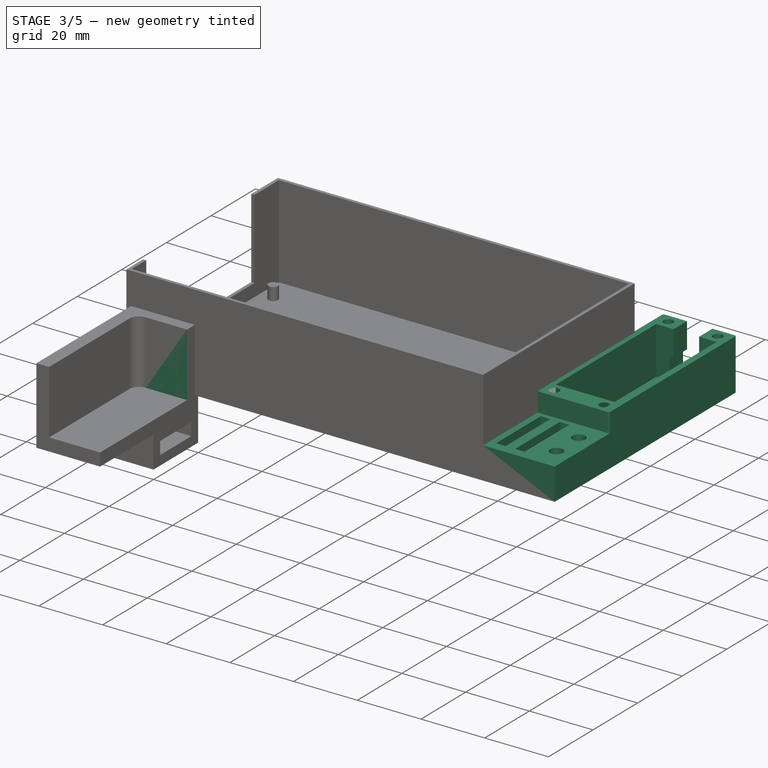
[diagram: stage 3 of 5 — iso view after this stage's code; geometry added in this stage tinted green]
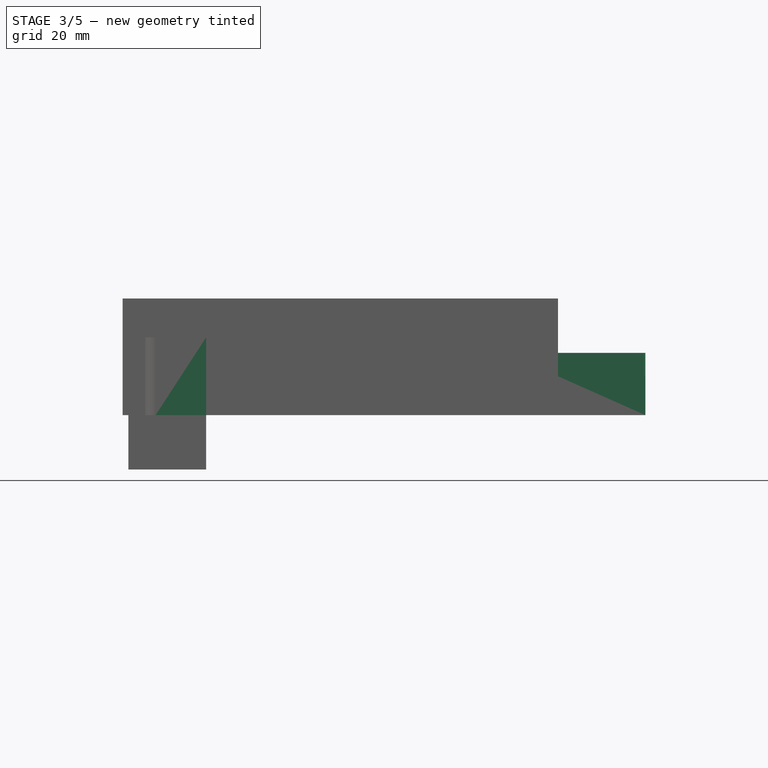
[diagram: stage 3 of 5 — front view after this stage's code; geometry added in this stage tinted green]
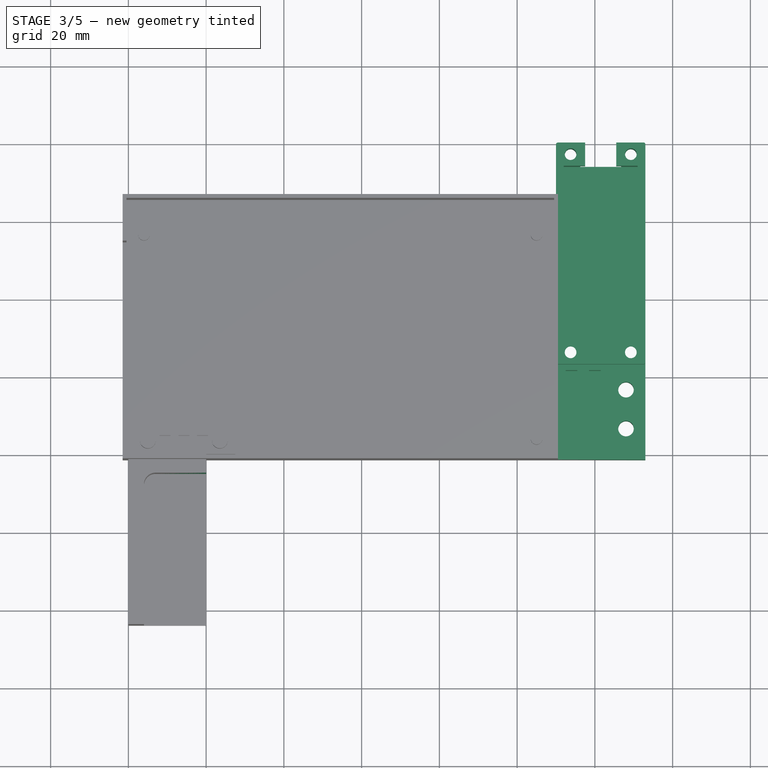
[diagram: stage 3 of 5 — top view after this stage's code; geometry added in this stage tinted green]
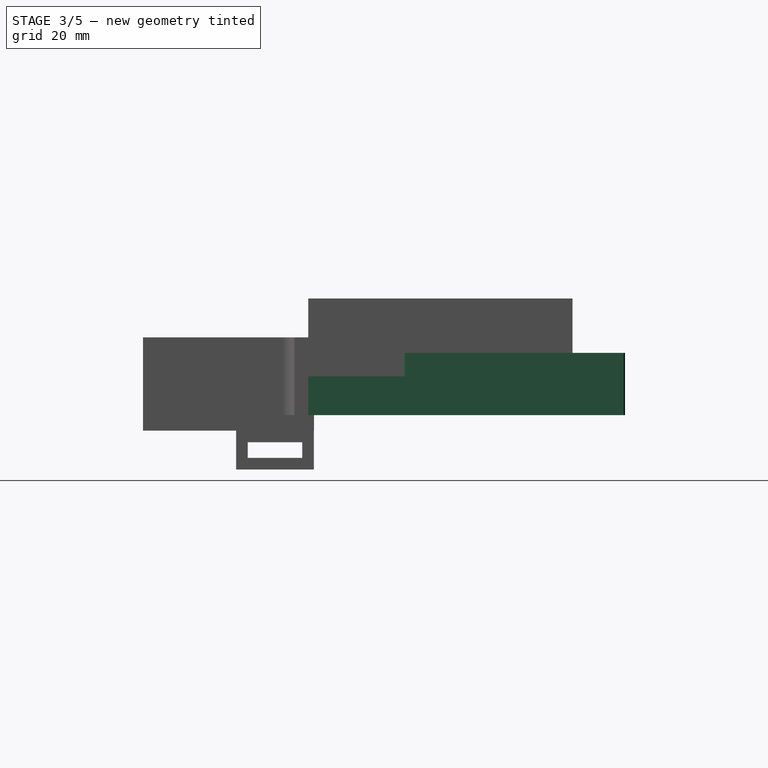
[diagram: stage 3 of 5 — right view after this stage's code; geometry added in this stage tinted green]
FEATURE [Sketcher::SketchObject] Sketch  label="bottomWhole"
  ArcFitTolerance = 1e-06
  AttachmentSupport = -> [XY_Plane]
  FullyConstrained = true
  MakeInternals = false
  MapMode = 5
  expr: Constraints[21] = VarSet.totalWidth
  expr: Constraints[22] = VarSet.totalHeight
  expr: Constraints[35] = VarSet.nanoHeight
  expr: Constraints[36] = VarSet.nanoWidth
  expr: Constraints[37] = VarSet.holderThickness
  expr: Constraints[38] = VarSet.holderXSidePad
  sketch-geometry (16):
    g0: LineSegment StartX=0.5 StartY=0 StartZ=0 EndX=56.5 EndY=0 EndZ=0
    g1: LineSegment StartX=57 StartY=0.5 StartZ=0 EndX=57 EndY=22.5 EndZ=0
    g2: LineSegment StartX=56.5 StartY=23 StartZ=0 EndX=0.5 EndY=23 EndZ=0
    g3: LineSegment StartX=0 StartY=22.5 StartZ=0 EndX=0 EndY=0.5 EndZ=0
    g4: ArcOfCircle CenterX=0.5 CenterY=22.5 CenterZ=0 NormalX=0 NormalY=0 NormalZ=1 AngleXU=0 Radius=0.5 StartAngle=1.5708 EndAngle=3.14159
    g5: GeomPoint [constr] X=0 Y=23 Z=0
    g6: ArcOfCircle CenterX=0.5 CenterY=0.5 CenterZ=0 NormalX=0 NormalY=0 NormalZ=1 AngleXU=0 Radius=0.5 StartAngle=3.14159 EndAngle=4.71239
    g7: GeomPoint [constr] X=0 Y=0 Z=0
    g8: ArcOfCircle CenterX=56.5 CenterY=0.5 CenterZ=0 NormalX=0 NormalY=0 NormalZ=1 AngleXU=0 Radius=0.5 StartAngle=4.71239 EndAngle=6.28319
    g9: GeomPoint [constr] X=57 Y=0 Z=0
    g10: ArcOfCircle CenterX=56.5 CenterY=22.5 CenterZ=0 NormalX=0 NormalY=0 NormalZ=1 AngleXU=0 Radius=0.5 StartAngle=-2.7e-15 EndAngle=1.5708
    g11: GeomPoint [constr] X=57 Y=23 Z=0
    g12: LineSegment [constr] StartX=6 StartY=21 StartZ=0 EndX=6 EndY=2 EndZ=0
    g13: LineSegment [constr] StartX=6 StartY=2 StartZ=0 EndX=51 EndY=2 EndZ=0
    g14: LineSegment [constr] StartX=51 StartY=2 StartZ=0 EndX=51 EndY=21 EndZ=0
    g15: LineSegment [constr] StartX=51 StartY=21 StartZ=0 EndX=6 EndY=21 EndZ=0
  constraints (39):
    c: Horizontal(g0)
    c: Horizontal(g2)
    c: Vertical(g1)
    c: Vertical(g3)
    c: Coincident(g7,g-1)
    c: PointOnObject(g5,g2)
    c: PointOnObject(g5,g3)
    c: Tangent(g2,g4) = -1.5708
    c: Tangent(g3,g4) = -1.5708
    c: PointOnObject(g7,g3)
    c: PointOnObject(g7,g0)
    c: Tangent(g3,g6) = -1.5708
    c: Tangent(g0,g6) = -1.5708
    c: PointOnObject(g9,g0)
    c: PointOnObject(g9,g1)
    c: Tangent(g0,g8) = -1.5708
    c: Tangent(g1,g8) = -1.5708
    c: PointOnObject(g11,g1)
    c: PointOnObject(g11,g2)
    c: Tangent(g1,g10) = -1.5708
    c: Tangent(g2,g10) = -1.5708
    c: DistanceY(g7,g5) = 23
    c: DistanceX(g5,g11) = 57
    c: Equal(g4,g6)
    c: Equal(g6,g10)
    c: Equal(g8,g10)
    c: Radius(g4) = 0.5
    c: Coincident(g12,g13)
    c: Coincident(g13,g14)
    c: Coincident(g14,g15)
    c: Coincident(g15,g12)
    c: Vertical(g12)
    c: Vertical(g14)
    c: Horizontal(g13)
    c: Horizontal(g15)
    c: DistanceX(g15,g15) = 45
    c: DistanceY(g12,g12) = 19
    c: DistanceY(g0,g12) = 2
    c: DistanceX(g7,g12) = 6
FEATURE [App::VarSet] VarSet
  bottomPlugEvenerWidth = 8
  connectHoleAdj = 0.1
  connectHoleR = 1.5
  coverAdj = 0.1
  coverInnerCarveThickness = 2
  dupontConnectCirAdj = 0.04
  dupontConnectCirR = 2
  dupontStickHoleSize = 2.84
  dupontWireConnectThickness = 2
  dupontWireConnector = 0
  dupontWireConnectorSideThickness = 3
  groundHolderThickness = 1
  holderBottomThickness = 1
  holderThickness = 2
  holderXSidePad = 6
  mainPad = 16
  nanoHeight = 45
  nanoWidth = 19
  totalHeight = 57
  totalWidth = 23
  usbOutsidePlugHeight = 8
  usbOutsidePlugeWidth = 10.5
  usbPlugWidth = 8
  expr: totalHeight = nanoHeight + holderXSidePad * 2
  expr: totalWidth = nanoWidth + holderThickness * 2
FEATURE [PartDesign::Pad] Pad
  Direction = (0,0,1)
  Length = 16
  Length2 = 10
  Profile = -> Sketch
  ReferenceAxis = -> Sketch [N_Axis]
  Refine = true
  Suppressed = false
  Type = 0
  expr: Length = VarSet.mainPad
FEATURE [Sketcher::SketchObject] Sketch001
  ArcFitTolerance = 1e-06
  AttachmentOffset = pos=(0,0,1) rot=(0,0,1;0rad)
  AttachmentSupport = -> [XY_Plane]
  FullyConstrained = true
  MakeInternals = false
  MapMode = 5
  Placement = pos=(0,0,1) rot=(0,0,1;0rad)
  expr: .AttachmentOffset.Base.z = VarSet.holderBottomThickness
  expr: Constraints[10] = VarSet.holderThickness
  expr: Constraints[11] = VarSet.holderXSidePad
  expr: Constraints[8] = VarSet.nanoHeight
  expr: Constraints[9] = VarSet.nanoWidth
  sketch-geometry (4):
    g0: LineSegment StartX=6 StartY=21 StartZ=0 EndX=6 EndY=2 EndZ=0
    g1: LineSegment StartX=6 StartY=2 StartZ=0 EndX=51 EndY=2 EndZ=0
    g2: LineSegment StartX=51 StartY=2 StartZ=0 EndX=51 EndY=21 EndZ=0
    g3: LineSegment StartX=51 StartY=21 StartZ=0 EndX=6 EndY=21 EndZ=0
  constraints (12):
    c: Coincident(g0,g1)
    c: Coincident(g1,g2)
    c: Coincident(g2,g3)
    c: Coincident(g3,g0)
    c: Vertical(g0)
    c: Vertical(g2)
    c: Horizontal(g1)
    c: Horizontal(g3)
    c: DistanceX(g3,g3) = 45
    c: DistanceY(g0,g0) = 19
    c: DistanceY(g-1,g0) = 2
    c: DistanceX(g-1,g0) = 6
FEATURE [PartDesign::Pocket] Pocket  label="PocketMain"
  BaseFeature = -> Pad
  Direction = (0,0,-1)
  Length = 5
  Length2 = 5
  Profile = -> Sketch001
  ReferenceAxis = -> Sketch001 [N_Axis]
  Refine = true
  Reversed = true
  Suppressed = false
  Type = 1
FEATURE [Sketcher::SketchObject] Sketch002  label="usbBalancer"
  ArcFitTolerance = 1e-06
  AttachmentSupport = -> [XY_Plane]
  FullyConstrained = true
  MakeInternals = false
  MapMode = 5
  expr: Constraints[10] = VarSet.totalHeight - VarSet.holderXSidePad
  expr: Constraints[11] = (VarSet.totalWidth - VarSet.bottomPlugEvenerWidth) / 2
  expr: Constraints[9] = VarSet.bottomPlugEvenerWidth
  sketch-geometry (4):
    g0: LineSegment StartX=48 StartY=15.5 StartZ=0 EndX=48 EndY=7.5 EndZ=0
    g1: LineSegment StartX=48 StartY=7.5 StartZ=0 EndX=51 EndY=7.5 EndZ=0
    g2: LineSegment StartX=51 StartY=7.5 StartZ=0 EndX=51 EndY=15.5 EndZ=0
    g3: LineSegment StartX=51 StartY=15.5 StartZ=0 EndX=48 EndY=15.5 EndZ=0
  constraints (12):
    c: Coincident(g0,g1)
    c: Coincident(g1,g2)
    c: Coincident(g2,g3)
    c: Coincident(g3,g0)
    c: Vertical(g0)
    c: Vertical(g2)
    c: Horizontal(g1)
    c: Horizontal(g3)
    c: DistanceX(g3,g3) = 3
    c: DistanceY(g0,g0) = 8
    c: DistanceX(g-1,g1) = 51
    c: DistanceY(g-1,g1) = 7.5
FEATURE [PartDesign::Pad] Pad001  label="Pad001UsbBalancer"
  BaseFeature = -> Pocket
  Direction = (0,0,1)
  Length = 3
  Length2 = 10
  Profile = -> Sketch002
  ReferenceAxis = -> Sketch002 [N_Axis]
  Refine = true
  Suppressed = false
  Type = 0
  expr: Length = VarSet.holderBottomThickness + 2 mm
FEATURE [Sketcher::SketchObject] Sketch003  label="usbOpener"
  ArcFitTolerance = 1e-06
  AttachmentOffset = pos=(0,0,1) rot=(0,0,1;0rad)
  AttachmentSupport = -> [XY_Plane]
  FullyConstrained = true
  MakeInternals = false
  MapMode = 5
  Placement = pos=(0,0,1) rot=(0,0,1;0rad)
  expr: .AttachmentOffset.Base.z = VarSet.holderBottomThickness
  expr: Constraints[10] = VarSet.usbPlugWidth
  expr: Constraints[11] = VarSet.holderXSidePad
  expr: Constraints[9] = (VarSet.totalWidth - VarSet.usbPlugWidth) / 2
  sketch-geometry (4):
    g0: LineSegment StartX=0 StartY=15.5 StartZ=0 EndX=0 EndY=7.5 EndZ=0
    g1: LineSegment StartX=0 StartY=7.5 StartZ=0 EndX=6 EndY=7.5 EndZ=0
    g2: LineSegment StartX=6 StartY=7.5 StartZ=0 EndX=6 EndY=15.5 EndZ=0
    g3: LineSegment StartX=6 StartY=15.5 StartZ=0 EndX=0 EndY=15.5 EndZ=0
  constraints (12):
    c: Coincident(g0,g1)
    c: Coincident(g1,g2)
    c: Coincident(g2,g3)
    c: Coincident(g3,g0)
    c: Vertical(g0)
    c: Vertical(g2)
    c: Horizontal(g1)
    c: Horizontal(g3)
    c: PointOnObject(g0,g-2)
    c: DistanceY(g-1,g0) = 7.5
    c: DistanceY(g0,g0) = 8
    c: DistanceX(g1,g1) = 6
FEATURE [PartDesign::Pocket] Pocket001  label="usbOpener001"
  BaseFeature = -> Pad001
  Direction = (0,0,-1)
  Length = 5
  Length2 = 5
  Profile = -> Sketch003
  ReferenceAxis = -> Sketch003 [N_Axis]
  Refine = true
  Reversed = true
  Suppressed = false
  Type = 1
FEATURE [Sketcher::SketchObject] Sketch004  label="ConnectHoles001"
  ArcFitTolerance = 1e-06
  AttachmentOffset = pos=(0,0,16) rot=(0,0,1;0rad)
  AttachmentSupport = -> [XY_Plane]
  FullyConstrained = true
  MakeInternals = false
  MapMode = 5
  Placement = pos=(0,0,16) rot=(0,0,1;0rad)
  expr: .AttachmentOffset.Base.z = VarSet.mainPad
  expr: Constraints[18] = VarSet.totalHeight
  expr: Constraints[19] = VarSet.totalWidth
  expr: Constraints[20] = (VarSet.totalWidth - VarSet.usbPlugWidth) / 4
  expr: Constraints[21] = (VarSet.totalWidth - VarSet.usbPlugWidth) / 4
  expr: Constraints[22] = VarSet.holderXSidePad / 2
  expr: Constraints[23] = VarSet.holderXSidePad / 2
  expr: Constraints[31] = VarSet.connectHoleR
  sketch-geometry (12):
    g0: LineSegment [constr] StartX=3 StartY=19.25 StartZ=0 EndX=3 EndY=3.75 EndZ=0
    g1: LineSegment [constr] StartX=3 StartY=3.75 StartZ=0 EndX=54 EndY=3.75 EndZ=0
    g2: LineSegment [constr] StartX=54 StartY=3.75 StartZ=0 EndX=54 EndY=19.25 EndZ=0
    g3: LineSegment [constr] StartX=54 StartY=19.25 StartZ=0 EndX=3 EndY=19.25 EndZ=0
    g4: LineSegment [constr] StartX=0 StartY=23 StartZ=0 EndX=0 EndY=0 EndZ=0
    g5: LineSegment [constr] StartX=0 StartY=0 StartZ=0 EndX=57 EndY=0 EndZ=0
    g6: LineSegment [constr] StartX=57 StartY=0 StartZ=0 EndX=57 EndY=23 EndZ=0
    g7: LineSegment [constr] StartX=57 StartY=23 StartZ=0 EndX=0 EndY=23 EndZ=0
    g8: Circle CenterX=3 CenterY=19.25 CenterZ=0 NormalX=0 NormalY=0 NormalZ=1 AngleXU=0 Radius=1.5
    g9: Circle CenterX=3 CenterY=3.75 CenterZ=0 NormalX=0 NormalY=0 NormalZ=1 AngleXU=0 Radius=1.5
    g10: Circle CenterX=54 CenterY=19.25 CenterZ=0 NormalX=0 NormalY=0 NormalZ=1 AngleXU=0 Radius=1.5
    g11: Circle CenterX=54 CenterY=3.75 CenterZ=0 NormalX=0 NormalY=0 NormalZ=1 AngleXU=0 Radius=1.5
  constraints (32):
    c: Coincident(g0,g1)
    c: Coincident(g1,g2)
    c: Coincident(g2,g3)
    c: Coincident(g3,g0)
    c: Vertical(g0)
    c: Vertical(g2)
    c: Horizontal(g1)
    c: Horizontal(g3)
    c: Coincident(g4,g5)
    c: Coincident(g5,g6)
    c: Coincident(g6,g7)
    c: Coincident(g7,g4)
    c: Vertical(g4)
    c: Vertical(g6)
    c: Horizontal(g5)
    c: Horizontal(g7)
    c: PointOnObject(g4,g-2)
    c: PointOnObject(g5,g-1)
    c: DistanceX(g5,g5) = 57
    c: DistanceY(g4,g4) = 23
    c: DistanceY(g0,g4) = 3.75
    c: DistanceY(g4,g0) = 3.75
    c: DistanceX(g4,g0) = 3
    c: DistanceX(g1,g5) = 3
    c: Coincident(g8,g0)
    c: Coincident(g9,g0)
    c: Coincident(g10,g2)
    c: Coincident(g11,g1)
    c: Equal(g9,g8)
    c: Equal(g8,g10)
    c: Equal(g10,g11)
    c: Radius(g8) = 1.5
FEATURE [PartDesign::Pocket] Pocket002  label="ConnectHoles"
  BaseFeature = -> Pocket001
  Direction = (0,0,-1)
  Length = 5
  Length2 = 5
  Profile = -> Sketch004
  ReferenceAxis = -> Sketch004 [N_Axis]
  Refine = true
  Suppressed = false
  Type = 1
FEATURE [Sketcher::SketchObject] Sketch005  label="usbOutsidePlug"
  ArcFitTolerance = 1e-06
  AttachmentSupport = -> [XY_Plane]
  FullyConstrained = true
  MakeInternals = false
  MapMode = 5
  expr: Constraints[10] = VarSet.usbOutsidePlugeWidth
  expr: Constraints[11] = (VarSet.totalWidth - VarSet.usbOutsidePlugeWidth) / 2
  expr: Constraints[9] = VarSet.holderXSidePad
  sketch-geometry (4):
    g0: LineSegment StartX=0 StartY=16.75 StartZ=0 EndX=0 EndY=6.25 EndZ=0
    g1: LineSegment StartX=0 StartY=6.25 StartZ=0 EndX=6 EndY=6.25 EndZ=0
    g2: LineSegment StartX=6 StartY=6.25 StartZ=0 EndX=6 EndY=16.75 EndZ=0
    g3: LineSegment StartX=6 StartY=16.75 StartZ=0 EndX=0 EndY=16.75 EndZ=0
  constraints (12):
    c: Coincident(g0,g1)
    c: Coincident(g1,g2)
    c: Coincident(g2,g3)
    c: Coincident(g3,g0)
    c: Vertical(g0)
    c: Vertical(g2)
    c: Horizontal(g1)
    c: Horizontal(g3)
    c: PointOnObject(g0,g-2)
    c: DistanceX(g1,g1) = 6
    c: DistanceY(g0,g0) = 10.5
    c: DistanceY(g-1,g0) = 6.25
FEATURE [PartDesign::Pocket] Pocket003
  BaseFeature = -> Pocket002
  Direction = (0,0,-1)
  Length = 8
  Length2 = 5
  Profile = -> Sketch005
  ReferenceAxis = -> Sketch005 [N_Axis]
  Refine = true
  Reversed = true
  Suppressed = false
  Type = 0
  expr: Length = VarSet.usbOutsidePlugHeight
FEATURE [PartDesign::Body] Body003  label="motorControllerHolder"
  AllowCompound = false
  Group = -> [Sketch016,Pad006,Sketch018,Pad007,Sketch019,Pad008,Sketch017,Pocket005,Sketch020,Pocket006]
  Origin = -> Origin003
  Placement = pos=(0,-47,0) rot=(0,0,1;0rad)
  Tip = -> Pocket006
  expr: .Placement.Base.y = -VarSet001.motorControllerWidth - VarSet001.motorControllerSide * 2
FEATURE [App::VarSet] VarSet002  label="VarSetWindowSet"
  lenghExt = 6
  pad = 20
  screwDiff = 6
  screwHoleR = 3
  sideScrewCenter = 38
  slideInInnerHeight = 4
  slideInInnerWidth = 14
  slideInSickness = 3
  slideInWidth = 10
  thickness = 4
  topScrewCenter = 14
  wallToBottomHole = 9
  wallToTopHole = 15
  expr: screwDiff = 10 mm - 4 mm
  expr: slideInInnerHeight = slideInWidth - slideInSickness * 2
  expr: slideInInnerWidth = topScrewCenter + lenghExt - slideInSickness * 2
FEATURE [Sketcher::SketchObject] Sketch021
  ArcFitTolerance = 1e-06
  AttachmentSupport = -> [XY_Plane004]
  FullyConstrained = true
  MakeInternals = false
  MapMode = 5
  expr: Constraints[10] = VarSet002.thickness
  expr: Constraints[11] = VarSet002.topScrewCenter + VarSet002.lenghExt
  expr: Constraints[12] = VarSet002.sideScrewCenter + VarSet002.lenghExt
  expr: Constraints[9] = VarSet002.thickness + 1 mm
  sketch-geometry (8):
    g0: LineSegment StartX=0 StartY=-44 StartZ=0 EndX=0 EndY=0 EndZ=0
    g1: LineSegment StartX=0 StartY=0 StartZ=0 EndX=20 EndY=0 EndZ=0
    g2: LineSegment StartX=20 StartY=0 StartZ=0 EndX=20 EndY=-5 EndZ=0
    g3: LineSegment StartX=20 StartY=-5 StartZ=0 EndX=7 EndY=-5 EndZ=0
    g4: LineSegment StartX=4 StartY=-8 StartZ=0 EndX=4 EndY=-44 EndZ=0
    g5: LineSegment StartX=4 StartY=-44 StartZ=0 EndX=0 EndY=-44 EndZ=0
    g6: ArcOfCircle CenterX=7 CenterY=-8 CenterZ=0 NormalX=0 NormalY=0 NormalZ=1 AngleXU=0 Radius=3 StartAngle=1.5708 EndAngle=3.14159
    g7: GeomPoint [constr] X=4 Y=-5 Z=0
  constraints (21):
    c: Coincident(g1,g0)
    c: Horizontal(g1)
    c: Coincident(g2,g1)
    c: Vertical(g2)
    c: Coincident(g3,g2)
    c: Horizontal(g3)
    c: Vertical(g4)
    c: Coincident(g5,g4)
    c: Coincident(g5,g0)
    c: DistanceY(g2,g2) = 5
    c: DistanceX(g5,g5) = 4
    c: DistanceX(g1,g1) = 20
    c: DistanceY(g0,g0) = 44
    c: Vertical(g0)
    c: Horizontal(g4,g0)
    c: Coincident(g-1,g0)
    c: PointOnObject(g7,g3)
    c: PointOnObject(g7,g4)
    c: Tangent(g3,g6) = -1.5708
    c: Tangent(g4,g6) = -1.5708
    c: Radius(g6) = 3
FEATURE [PartDesign::Pad] Pad009
  Direction = (0,0,1)
  Length = 20
  Length2 = 10
  Profile = -> Sketch021
  ReferenceAxis = -> Sketch021 [N_Axis]
  Refine = true
  Suppressed = false
  Type = 0
  expr: Length = VarSet002.pad
FEATURE [PartDesign::Body] Body010  label="hunnger"
  AllowCompound = false
  Group = -> [Sketch039,Pad022]
  Origin = -> Origin010
  Placement = pos=(123,-1.5,0) rot=(0,0,1;0rad)
  Tip = -> Pad022
FEATURE [PartDesign::Boolean] Boolean
  Group = -> [Body006,Body005,Body,Body010]
  Refine = true
  Suppressed = false
  Type = 0
  UsePlacement = true
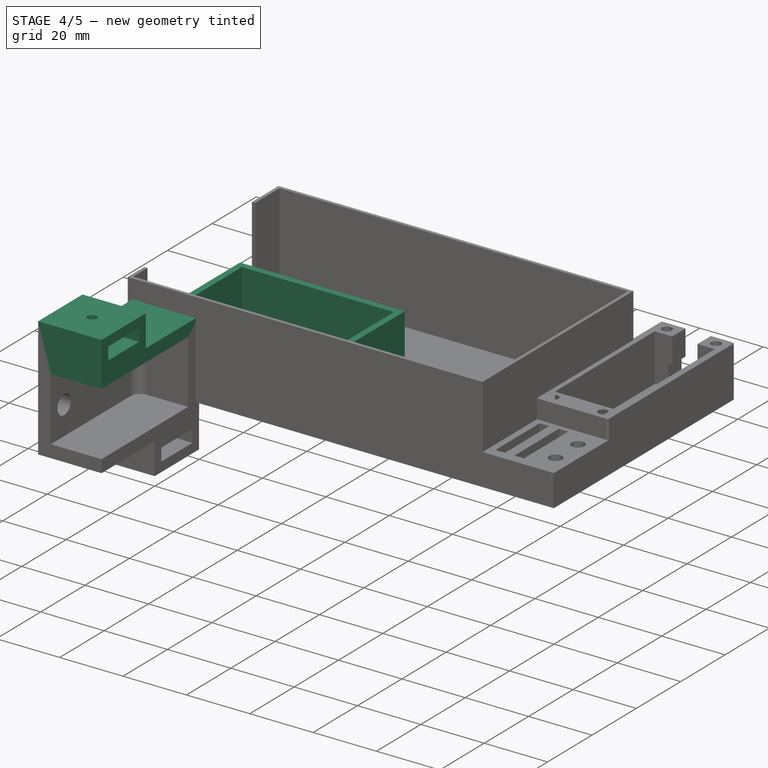
[diagram: stage 4 of 5 — iso view after this stage's code; geometry added in this stage tinted green]
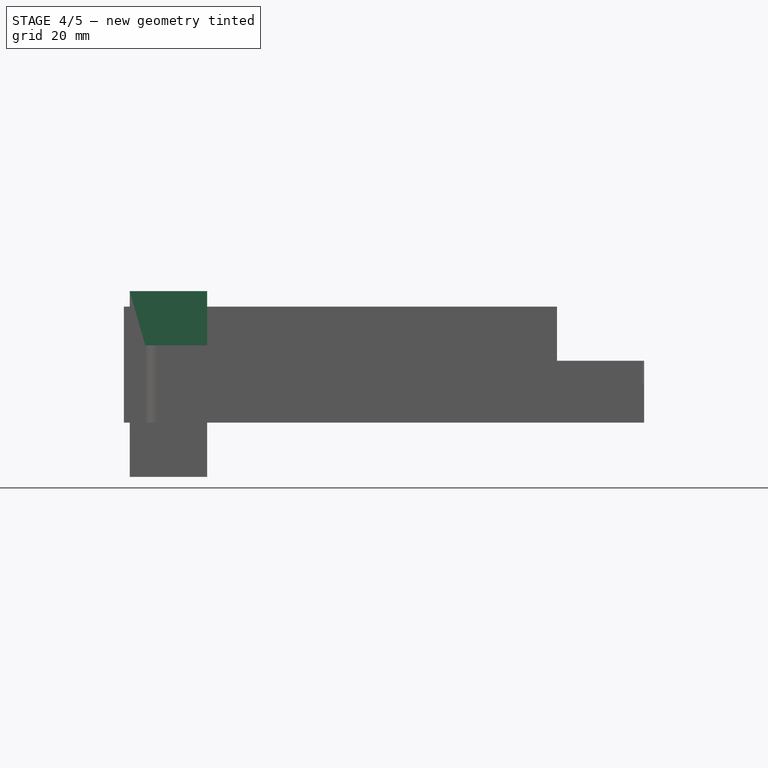
[diagram: stage 4 of 5 — front view after this stage's code; geometry added in this stage tinted green]
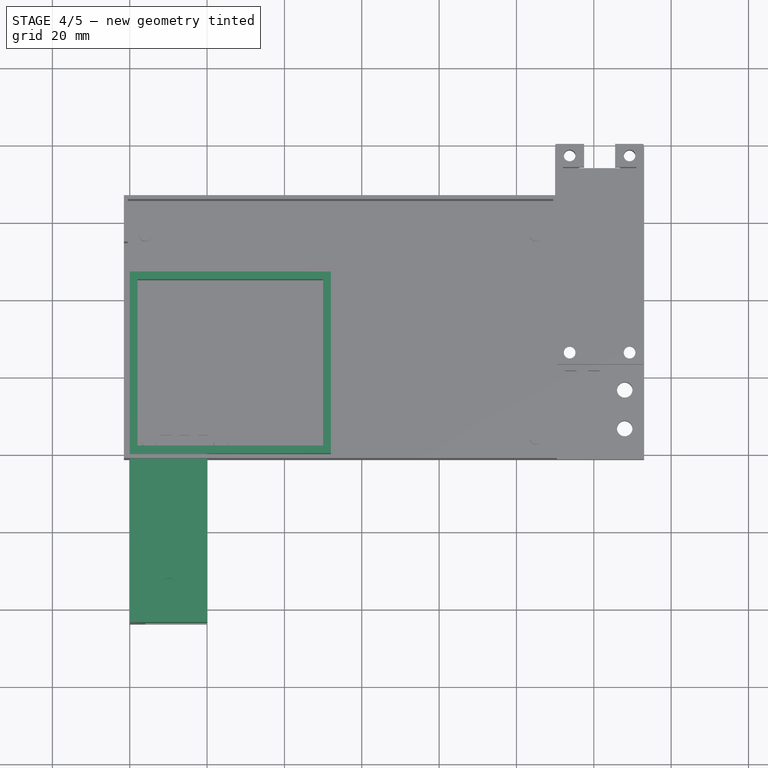
[diagram: stage 4 of 5 — top view after this stage's code; geometry added in this stage tinted green]
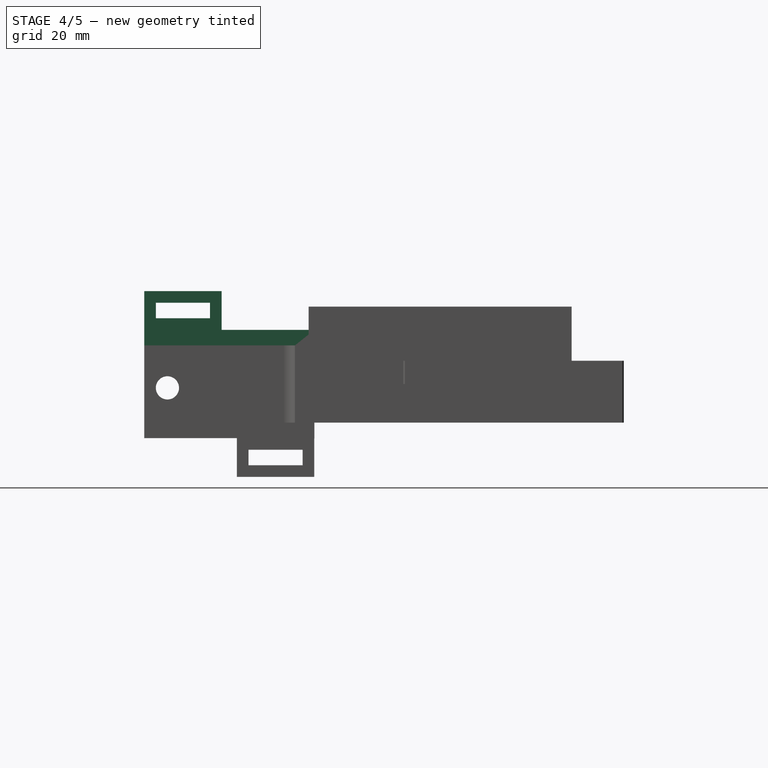
[diagram: stage 4 of 5 — right view after this stage's code; geometry added in this stage tinted green]
FEATURE [PartDesign::Body] Body002  label="groundWireHolder"
  AllowCompound = false
  Group = -> [Sketch015,Pad005]
  Origin = -> Origin002
  Tip = -> Pad005
FEATURE [App::VarSet] VarSet001
  MotorShaftHookLen = 26
  adj = 0.07
  m3ScrewLight = 1.5
  m3ScrewTight = 1.4
  motorConnBaseHight = 6
  motorConnWireRodLen = 12
  motorControllerAdj = 0.2
  motorControllerBottomCoverTemp = 9
  motorControllerBottomPad = 1
  motorControllerBottomThickness = 6
  motorControllerHeight = 48
  motorControllerHoleR = 1.5
  motorControllerHoleToSide = 4
  motorControllerSide = 2
  motorControllerWidth = 43
  motorHolderScrewR = 15.5
  motorHolderThickness = 2
  motorR = 18.5
  motorRAfterAdj = 18.57
  motorShaftHolderR = 10
  motorShaftLimitHight = 2.5
  motorShaftR = 3
  motorShaftSurrandR = 6
  motorShaftToCenter = 7
  shaftHolderR = 10
  topInsertBottomHeight = 5
  topInsertBottomWith = 28
  topInsertMidHeight = 11
  topInsertMidWidth = 34
  topInsertThickness = 3
  topInsertTopHeight = 6
  topInsertTopWidth = 28
  expr: motorRAfterAdj = motorR + adj
  expr: motorShaftSurrandR = 6
FEATURE [Sketcher::SketchObject] Sketch016  label="sides001"
  ArcFitTolerance = 1e-06
  AttachmentSupport = -> [XY_Plane003]
  FullyConstrained = true
  MakeInternals = false
  MapMode = 5
  expr: Constraints[17] = VarSet001.motorControllerWidth
  expr: Constraints[18] = VarSet001.motorControllerHeight
  expr: Constraints[19] = VarSet001.motorControllerSide
  expr: Constraints[20] = VarSet001.motorControllerSide
  expr: Constraints[21] = VarSet001.motorControllerSide
  expr: Constraints[22] = VarSet001.motorControllerSide
  sketch-geometry (8):
    g0: LineSegment StartX=0 StartY=0 StartZ=0 EndX=52 EndY=0 EndZ=0
    g1: LineSegment StartX=52 StartY=0 StartZ=0 EndX=52 EndY=47 EndZ=0
    g2: LineSegment StartX=52 StartY=47 StartZ=0 EndX=0 EndY=47 EndZ=0
    g3: LineSegment StartX=0 StartY=47 StartZ=0 EndX=0 EndY=0 EndZ=0
    g4: LineSegment StartX=2 StartY=45 StartZ=0 EndX=2 EndY=2 EndZ=0
    g5: LineSegment StartX=2 StartY=2 StartZ=0 EndX=50 EndY=2 EndZ=0
    g6: LineSegment StartX=50 StartY=2 StartZ=0 EndX=50 EndY=45 EndZ=0
    g7: LineSegment StartX=50 StartY=45 StartZ=0 EndX=2 EndY=45 EndZ=0
  constraints (23):
    c: Coincident(g0,g1)
    c: Coincident(g1,g2)
    c: Coincident(g2,g3)
    c: Coincident(g3,g0)
    c: Horizontal(g0)
    c: Horizontal(g2)
    c: Vertical(g1)
    c: Vertical(g3)
    c: Coincident(g0,g-1)
    c: Coincident(g4,g5)
    c: Coincident(g5,g6)
    c: Coincident(g6,g7)
    c: Coincident(g7,g4)
    c: Vertical(g4)
    c: Vertical(g6)
    c: Horizontal(g5)
    c: Horizontal(g7)
    c: DistanceY(g4,g4) = 43
    c: DistanceX(g7,g7) = 48
    c: DistanceY(g4,g2) = 2
    c: DistanceY(g0,g4) = 2
    c: DistanceX(g2,g4) = 2
    c: DistanceX(g5,g0) = 2
FEATURE [Sketcher::SketchObject] Sketch017  label="insideAdj"
  ArcFitTolerance = 1e-06
  AttachmentOffset = pos=(0,0,1) rot=(0,0,1;0rad)
  AttachmentSupport = -> [XY_Plane003]
  ExternalGeometry = -> [Sketch016]
  FullyConstrained = false
  MakeInternals = false
  MapMode = 5
  Placement = pos=(0,0,1) rot=(0,0,1;0rad)
  expr: .AttachmentOffset.Base.z = VarSet001.motorControllerBottomPad
  expr: Constraints[10] = VarSet001.motorControllerAdj
  expr: Constraints[11] = VarSet001.motorControllerAdj
  expr: Constraints[8] = VarSet001.motorControllerAdj
  expr: Constraints[9] = VarSet001.motorControllerAdj
  sketch-geometry (8):
    g0: LineSegment StartX=1.8 StartY=45.2 StartZ=0 EndX=1.8 EndY=1.8 EndZ=0
    g1: LineSegment StartX=1.8 StartY=1.8 StartZ=0 EndX=50.2 EndY=1.8 EndZ=0
    g2: LineSegment StartX=50.2 StartY=1.8 StartZ=0 EndX=50.2 EndY=45.2 EndZ=0
    g3: LineSegment StartX=50.2 StartY=45.2 StartZ=0 EndX=1.8 EndY=45.2 EndZ=0
    g4: LineSegment StartX=3.29205 StartY=43.5818 StartZ=0 EndX=3.29205 EndY=3.53266 EndZ=0
    g5: LineSegment StartX=3.29205 StartY=3.53266 StartZ=0 EndX=48.7312 EndY=3.53266 EndZ=0
    g6: LineSegment StartX=48.7312 StartY=3.53266 StartZ=0 EndX=48.7312 EndY=43.5818 EndZ=0
    g7: LineSegment StartX=48.7312 StartY=43.5818 StartZ=0 EndX=3.29205 EndY=43.5818 EndZ=0
  constraints (20):
    c: Coincident(g0,g1)
    c: Coincident(g1,g2)
    c: Coincident(g2,g3)
    c: Coincident(g3,g0)
    c: Vertical(g0)
    c: Vertical(g2)
    c: Horizontal(g1)
    c: Horizontal(g3)
    c: DistanceX(g0,g-3) = 0.2
    c: DistanceY(g0,g-4) = 0.2
    c: DistanceY(g-3,g0) = 0.2
    c: DistanceX(g-4,g1) = 0.2
    c: Coincident(g4,g5)
    c: Coincident(g5,g6)
    c: Coincident(g6,g7)
    c: Coincident(g7,g4)
    c: Vertical(g4)
    c: Vertical(g6)
    c: Horizontal(g5)
    c: Horizontal(g7)
FEATURE [Sketcher::SketchObject] Sketch018  label="middle"
  ArcFitTolerance = 1e-06
  AttachmentSupport = -> [XY_Plane003]
  FullyConstrained = true
  MakeInternals = false
  MapMode = 5
  expr: Constraints[10] = VarSet001.motorControllerSide
  expr: Constraints[11] = VarSet001.motorControllerSide
  expr: Constraints[15] = VarSet001.motorControllerHoleR - 1 mm
  expr: Constraints[28] = VarSet001.motorControllerHoleToSide
  expr: Constraints[29] = VarSet001.motorControllerHoleToSide
  expr: Constraints[30] = VarSet001.motorControllerHoleToSide
  expr: Constraints[31] = VarSet001.motorControllerHoleToSide
  expr: Constraints[8] = VarSet001.motorControllerWidth
  expr: Constraints[9] = VarSet001.motorControllerHeight
  sketch-geometry (12):
    g0: LineSegment StartX=2 StartY=45 StartZ=0 EndX=2 EndY=2 EndZ=0
    g1: LineSegment StartX=2 StartY=2 StartZ=0 EndX=50 EndY=2 EndZ=0
    g2: LineSegment StartX=50 StartY=2 StartZ=0 EndX=50 EndY=45 EndZ=0
    g3: LineSegment StartX=50 StartY=45 StartZ=0 EndX=2 EndY=45 EndZ=0
    g4: Circle CenterX=6 CenterY=41 CenterZ=0 NormalX=0 NormalY=0 NormalZ=1 AngleXU=0 Radius=0.5
    g5: Circle CenterX=6 CenterY=6 CenterZ=0 NormalX=0 NormalY=0 NormalZ=1 AngleXU=0 Radius=0.5
    g6: Circle CenterX=46 CenterY=6 CenterZ=0 NormalX=0 NormalY=0 NormalZ=1 AngleXU=0 Radius=0.5
    g7: Circle CenterX=46 CenterY=41 CenterZ=0 NormalX=0 NormalY=0 NormalZ=1 AngleXU=0 Radius=0.5
    g8: LineSegment [constr] StartX=6 StartY=41 StartZ=0 EndX=46 EndY=41 EndZ=0
    g9: LineSegment [constr] StartX=46 StartY=41 StartZ=0 EndX=46 EndY=6 EndZ=0
    g10: LineSegment [constr] StartX=46 StartY=6 StartZ=0 EndX=6 EndY=6 EndZ=0
    g11: LineSegment [constr] StartX=6 StartY=6 StartZ=0 EndX=6 EndY=41 EndZ=0
  constraints (32):
    c: Coincident(g0,g1)
    c: Coincident(g1,g2)
    c: Coincident(g2,g3)
    c: Coincident(g3,g0)
    c: Vertical(g0)
    c: Vertical(g2)
    c: Horizontal(g1)
    c: Horizontal(g3)
    c: DistanceY(g0,g0) = 43
    c: DistanceX(g3,g3) = 48
    c: DistanceY(g-1,g0) = 2
    c: DistanceX(g-1,g0) = 2
    c: Equal(g4,g7)
    c: Equal(g7,g6)
    c: Equal(g6,g5)
    c: Radius(g5) = 0.5
    c: Coincident(g8,g4)
    c: Coincident(g8,g7)
    c: Horizontal(g8)
    c: Coincident(g9,g7)
    c: Coincident(g9,g6)
    c: Vertical(g9)
    c: Coincident(g10,g6)
    c: Coincident(g10,g5)
    c: Horizontal(g10)
    c: Coincident(g11,g5)
    c: Coincident(g11,g4)
    c: Vertical(g11)
    c: DistanceX(g0,g4) = 4
    c: DistanceX(g7,g2) = 4
    c: DistanceY(g4,g0) = 4
    c: DistanceY(g0,g5) = 4
FEATURE [PartDesign::Pad] Pad006  label="sides"
  Direction = (0,0,1)
  Length = 16
  Length2 = 10
  Profile = -> Sketch016
  ReferenceAxis = -> Sketch016 [N_Axis]
  Refine = true
  Suppressed = false
  Type = 0
  expr: Length = VarSet.mainPad
FEATURE [PartDesign::Pad] Pad007  label="middle001"
  BaseFeature = -> Pad006
  Direction = (0,0,1)
  Length = 1
  Length2 = 10
  Profile = -> Sketch018
  ReferenceAxis = -> Sketch018 [N_Axis]
  Refine = true
  Suppressed = false
  Type = 0
  expr: Length = VarSet001.motorControllerBottomPad
FEATURE [Sketcher::SketchObject] Sketch023  label="topHole"
  ArcFitTolerance = 1e-06
  AttachmentSupport = -> [XZ_Plane004]
  FullyConstrained = true
  MakeInternals = false
  MapMode = 5
  Placement = pos=(0,0,0) rot=(1,0,0;1.5708rad)
  expr: Constraints[2] = VarSet002.topScrewCenter
  expr: Constraints[3] = VarSet002.wallToTopHole
  expr: Constraints[5] = VarSet002.screwHoleR
  sketch-geometry (2):
    g0: LineSegment [constr] StartX=0 StartY=15 StartZ=0 EndX=14 EndY=15 EndZ=0
    g1: Circle CenterX=14 CenterY=15 CenterZ=0 NormalX=0 NormalY=0 NormalZ=1 AngleXU=0 Radius=3
  constraints (6):
    c: PointOnObject(g0,g-2)
    c: Horizontal(g0)
    c: DistanceX(g0,g0) = 14
    c: DistanceY(g-1,g0) = 15
    c: Coincident(g1,g0)
    c: Radius(g1) = 3
FEATURE [PartDesign::Pocket] Pocket008  label="pocketTopHole"
  BaseFeature = -> Pad009
  Direction = (0,1,-2e-16)
  Length = 5
  Length2 = 5
  Profile = -> Sketch023
  ReferenceAxis = -> Sketch023 [N_Axis]
  Refine = true
  Reversed = true
  Suppressed = false
  Type = 1
FEATURE [Sketcher::SketchObject] Sketch024  label="bottomHole"
  ArcFitTolerance = 1e-06
  AttachmentSupport = -> [YZ_Plane004]
  FullyConstrained = true
  MakeInternals = false
  MapMode = 5
  Placement = pos=(0,0,0) rot=(0.57735,0.57735,0.57735;2.0944rad)
  expr: Constraints[0] = VarSet002.screwHoleR
  expr: Constraints[1] = VarSet002.wallToBottomHole
  expr: Constraints[2] = VarSet002.sideScrewCenter
  sketch-geometry (1):
    g0: Circle CenterX=-38 CenterY=9 CenterZ=0 NormalX=0 NormalY=0 NormalZ=1 AngleXU=0 Radius=3
  constraints (3):
    c: Radius(g0) = 3
    c: DistanceY(g-1,g0) = 9
    c: DistanceX(g0,g-1) = 38
FEATURE [PartDesign::Pocket] Pocket009
  BaseFeature = -> Pocket008
  Direction = (-1,0,0)
  Length = 5
  Length2 = 5
  Profile = -> Sketch024
  ReferenceAxis = -> Sketch024 [N_Axis]
  Refine = true
  Reversed = true
  Suppressed = false
  Type = 0
FEATURE [Sketcher::SketchObject] Sketch025  label="SideHookEntrance"
  ArcFitTolerance = 1e-06
  AttachmentSupport = -> [XZ_Plane004]
  FullyConstrained = true
  MakeInternals = false
  MapMode = 5
  Placement = pos=(0,0,0) rot=(1,0,0;1.5708rad)
  expr: Constraints[14] = VarSet002.pad
  expr: Constraints[15] = VarSet002.slideInSickness
  expr: Constraints[16] = VarSet002.slideInSickness
  expr: Constraints[17] = VarSet002.slideInSickness
  expr: Constraints[18] = VarSet002.slideInSickness + 12 mm
  expr: Constraints[19] = VarSet002.slideInInnerHeight
  expr: Constraints[23] = VarSet002.slideInInnerWidth
  sketch-geometry (8):
    g0: LineSegment StartX=0 StartY=20 StartZ=0 EndX=20 EndY=20 EndZ=0
    g1: LineSegment StartX=20 StartY=20 StartZ=0 EndX=20 EndY=42 EndZ=0
    g2: LineSegment StartX=20 StartY=42 StartZ=0 EndX=0 EndY=42 EndZ=0
    g3: LineSegment StartX=3 StartY=39 StartZ=0 EndX=3 EndY=35 EndZ=0
    g4: LineSegment StartX=3 StartY=35 StartZ=0 EndX=17 EndY=35 EndZ=0
    g5: LineSegment StartX=17 StartY=35 StartZ=0 EndX=17 EndY=39 EndZ=0
    g6: LineSegment StartX=17 StartY=39 StartZ=0 EndX=3 EndY=39 EndZ=0
    g7: LineSegment StartX=0 StartY=42 StartZ=0 EndX=0 EndY=20 EndZ=0
  constraints (24):
    c: Coincident(g0,g1)
    c: Coincident(g1,g2)
    c: Vertical(g1)
    c: Horizontal(g0)
    c: Horizontal(g2)
    c: PointOnObject(g2,g-2)
    c: Coincident(g3,g4)
    c: Coincident(g4,g5)
    c: Coincident(g5,g6)
    c: Coincident(g6,g3)
    c: Vertical(g3)
    c: Vertical(g5)
    c: Horizontal(g4)
    c: Horizontal(g6)
    c: DistanceY(g-1,g0) = 20
    c: DistanceX(g2,g3) = 3
    c: DistanceX(g5,g1) = 3
    c: DistanceY(g3,g2) = 3
    c: DistanceY(g0,g3) = 15
    c: DistanceY(g3,g3) = 4
    c: PointOnObject(g0,g-2)
    c: Coincident(g7,g2)
    c: Coincident(g7,g0)
    c: DistanceX(g6,g6) = 14
FEATURE [PartDesign::Pad] Pad010
  BaseFeature = -> Pocket009
  Direction = (0,-1,2e-16)
  Length = 10
  Length2 = 10
  Profile = -> Sketch025
  ReferenceAxis = -> Sketch025 [N_Axis]
  Refine = true
  Suppressed = true
  Type = 0
FEATURE [Sketcher::SketchObject] Sketch026  label="sideWall"
  ArcFitTolerance = 1e-06
  AttachmentSupport = -> [YZ_Plane004]
  FullyConstrained = true
  MakeInternals = false
  MapMode = 5
  Placement = pos=(0,0,0) rot=(0.57735,0.57735,0.57735;2.0944rad)
  expr: Constraints[10] = VarSet002.topScrewCenter + VarSet002.lenghExt
  expr: Constraints[11] = VarSet002.thickness
  expr: Constraints[8] = VarSet002.sideScrewCenter + VarSet002.lenghExt
  sketch-geometry (4):
    g0: LineSegment StartX=-44 StartY=24 StartZ=0 EndX=-44 EndY=20 EndZ=0
    g1: LineSegment StartX=-44 StartY=20 StartZ=0 EndX=0 EndY=20 EndZ=0
    g2: LineSegment StartX=0 StartY=20 StartZ=0 EndX=0 EndY=24 EndZ=0
    g3: LineSegment StartX=0 StartY=24 StartZ=0 EndX=-44 EndY=24 EndZ=0
  constraints (12):
    c: Coincident(g0,g1)
    c: Coincident(g1,g2)
    c: Coincident(g2,g3)
    c: Coincident(g3,g0)
    c: Vertical(g0)
    c: Vertical(g2)
    c: Horizontal(g1)
    c: Horizontal(g3)
    c: DistanceX(g3,g3) = 44
    c: PointOnObject(g2,g-2)
    c: DistanceY(g-1,g1) = 20
    c: DistanceY(g0,g0) = 4
FEATURE [PartDesign::Pad] Pad011
  BaseFeature = -> Pad010
  Direction = (1,0,0)
  Length = 20
  Length2 = 10
  Profile = -> Sketch026
  ReferenceAxis = -> Sketch026 [N_Axis]
  Refine = true
  Suppressed = false
  Type = 0
  expr: Length = VarSet002.topScrewCenter + VarSet002.lenghExt
FEATURE [Sketcher::SketchObject] Sketch027  label="SideHookEntrance001"
  ArcFitTolerance = 1e-06
  AttachmentSupport = -> [YZ_Plane004]
  FullyConstrained = true
  MakeInternals = false
  MapMode = 5
  Placement = pos=(0,0,0) rot=(0.57735,0.57735,0.57735;2.0944rad)
  expr: Constraints[11] = VarSet002.pad + VarSet002.thickness
  expr: Constraints[12] = VarSet002.slideInSickness
  expr: Constraints[13] = VarSet002.slideInSickness
  expr: Constraints[14] = VarSet002.slideInSickness
  expr: Constraints[15] = VarSet002.slideInSickness
  expr: Constraints[16] = VarSet002.slideInInnerHeight
  expr: Constraints[18] = VarSet002.slideInInnerWidth
  expr: Constraints[23] = VarSet002.sideScrewCenter + VarSet002.lenghExt
  sketch-geometry (8):
    g0: LineSegment StartX=-44 StartY=24 StartZ=0 EndX=-24 EndY=24 EndZ=0
    g1: LineSegment StartX=-24 StartY=24 StartZ=0 EndX=-24 EndY=34 EndZ=0
    g2: LineSegment StartX=-41 StartY=31 StartZ=0 EndX=-41 EndY=27 EndZ=0
    g3: LineSegment StartX=-41 StartY=27 StartZ=0 EndX=-27 EndY=27 EndZ=0
    g4: LineSegment StartX=-27 StartY=27 StartZ=0 EndX=-27 EndY=31 EndZ=0
    g5: LineSegment StartX=-27 StartY=31 StartZ=0 EndX=-41 EndY=31 EndZ=0
    g6: LineSegment StartX=-44 StartY=34 StartZ=0 EndX=-44 EndY=24 EndZ=0
    g7: LineSegment StartX=-44 StartY=34 StartZ=0 EndX=-24 EndY=34 EndZ=0
  constraints (24):
    c: Coincident(g0,g1)
    c: Vertical(g1)
    c: Horizontal(g0)
    c: Coincident(g2,g3)
    c: Coincident(g3,g4)
    c: Coincident(g4,g5)
    c: Coincident(g5,g2)
    c: Vertical(g2)
    c: Vertical(g4)
    c: Horizontal(g3)
    c: Horizontal(g5)
    c: DistanceY(g-1,g0) = 24
    c: DistanceX(g6,g2) = 3
    c: DistanceX(g4,g1) = 3
    c: DistanceY(g2,g6) = 3
    c: DistanceY(g0,g2) = 3
    c: DistanceY(g2,g2) = 4
    c: Coincident(g6,g0)
    c: DistanceX(g5,g5) = 14
    c: Vertical(g6)
    c: Coincident(g7,g6)
    c: Coincident(g7,g1)
    c: Horizontal(g7)
    c: DistanceX(g0,g-1) = 44
FEATURE [PartDesign::Pad] Pad012  label="PadSideSlidin"
  BaseFeature = -> Pad011
  Direction = (1,0,0)
  Length = 20
  Length2 = 10
  Profile = -> Sketch027
  ReferenceAxis = -> Sketch027 [N_Axis]
  Refine = true
  Suppressed = false
  Type = 0
  expr: Length = VarSet002.topScrewCenter + VarSet002.lenghExt
FEATURE [Sketcher::SketchObject] Sketch028  label="slideIndTightenScrewHow"
  ArcFitTolerance = 1e-06
  AttachmentOffset = pos=(0,0,34) rot=(0,0,1;0rad)
  AttachmentSupport = -> [XY_Plane004]
  ExternalGeometry = -> [Pad012]
  FullyConstrained = false
  MakeInternals = false
  MapMode = 5
  Placement = pos=(0,0,34) rot=(0,0,1;0rad)
  expr: .AttachmentOffset.Base.z = VarSet002.pad + VarSet002.thickness + VarSet002.slideInInnerHeight + VarSet002.slideInSickness * 2
  sketch-geometry (5):
    g0: LineSegment [constr] StartX=0 StartY=0 StartZ=0 EndX=0 EndY=-34 EndZ=0
    g1: LineSegment [constr] StartX=0 StartY=-34 StartZ=0 EndX=10 EndY=-34 EndZ=0
    g2: LineSegment [constr] StartX=24.4 StartY=0 StartZ=0 EndX=0 EndY=0 EndZ=0
    g3: Circle CenterX=10 CenterY=-34 CenterZ=0 NormalX=0 NormalY=0 NormalZ=1 AngleXU=0 Radius=1.4
    g4: LineSegment [constr] StartX=10 StartY=-34 StartZ=0 EndX=10 EndY=-13.7103 EndZ=0
  constraints (10):
    c: Coincident(g0,g1)
    c: Coincident(g2,g0)
    c: Vertical(g0)
    c: Horizontal(g2)
    c: Coincident(g0,g-1)
    c: Symmetric(g-4,g-3,g1)
    c: Coincident(g3,g1)
    c: Radius(g3) = 1.4
    c: Coincident(g4,g1)
    c: Symmetric(g-4,g-4,g4)
FEATURE [PartDesign::Pocket] Pocket010  label="slideIndTightenScrew"
  BaseFeature = -> Pad012
  Direction = (0,0,-1)
  Length = 5
  Length2 = 5
  Profile = -> Sketch028
  ReferenceAxis = -> Sketch028 [N_Axis]
  Refine = true
  Suppressed = false
  Type = 2
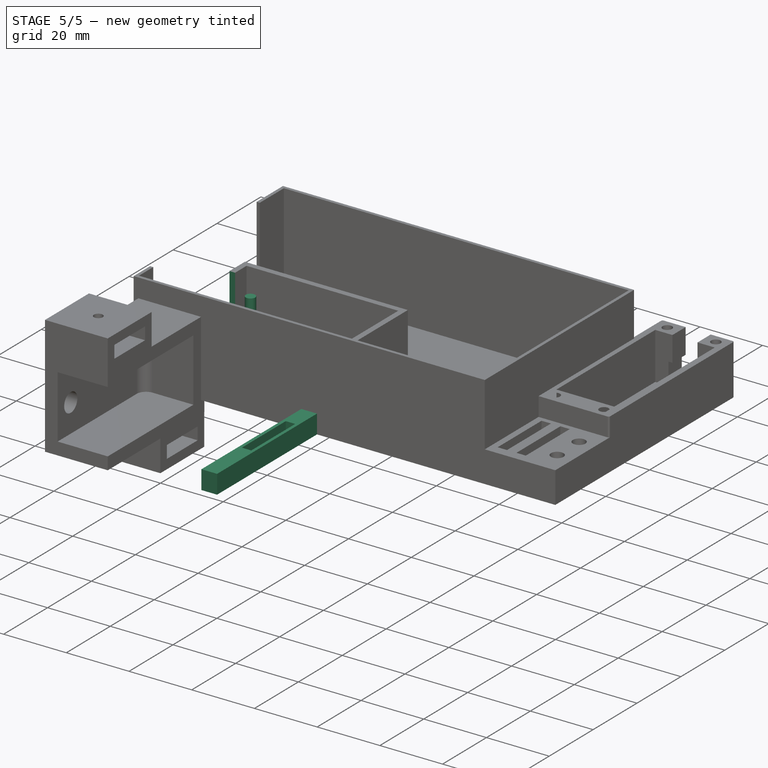
[diagram: stage 5 of 5 — iso view after this stage's code; geometry added in this stage tinted green]
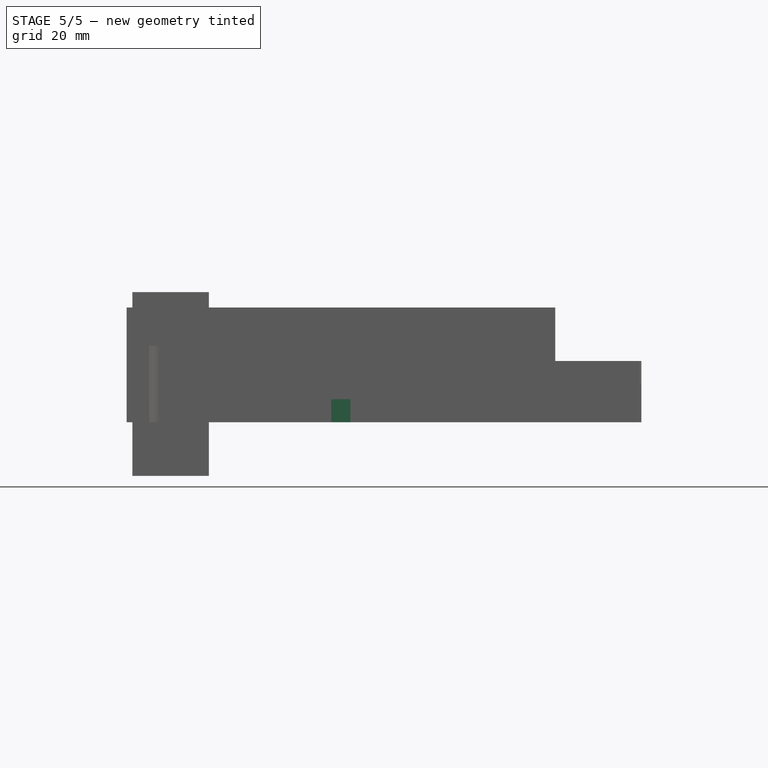
[diagram: stage 5 of 5 — front view after this stage's code; geometry added in this stage tinted green]
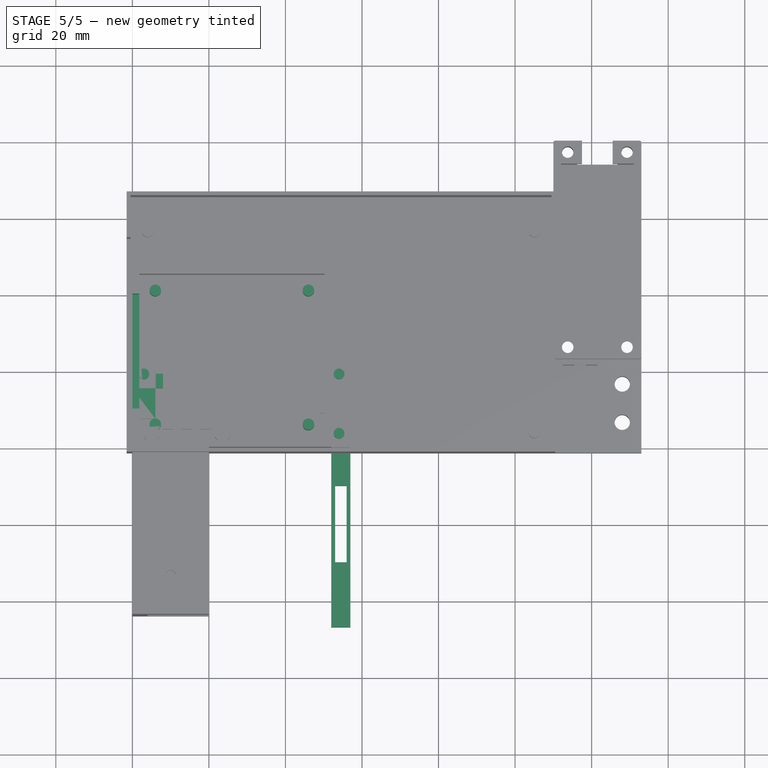
[diagram: stage 5 of 5 — top view after this stage's code; geometry added in this stage tinted green]
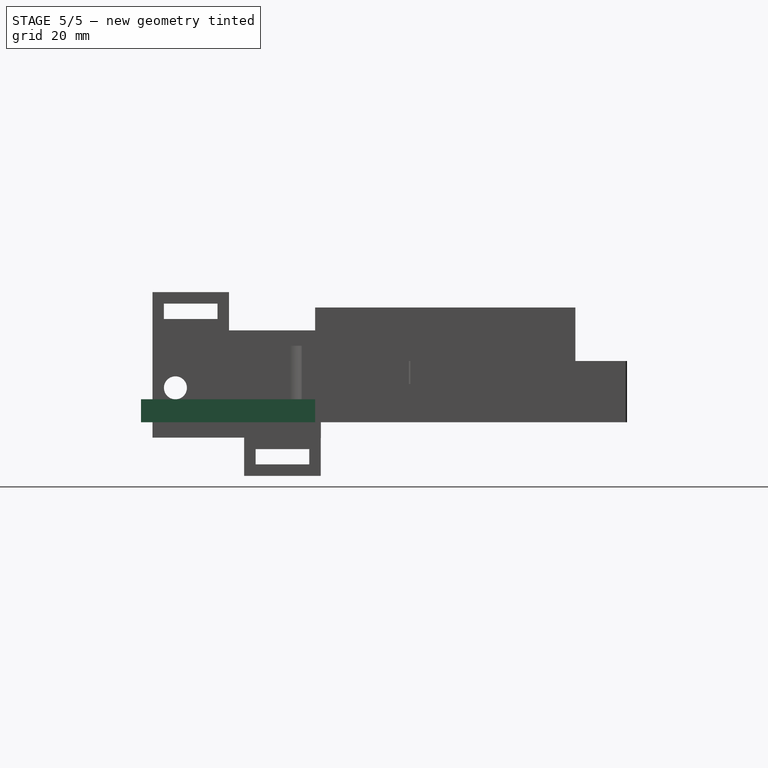
[diagram: stage 5 of 5 — right view after this stage's code; geometry added in this stage tinted green]
FEATURE [PartDesign::Body] Body  label="nanoHolder"
  AllowCompound = false
  Group = -> [Sketch,Pad,Sketch001,Pocket,Sketch002,Pad001,Sketch003,Pocket001,Sketch004,Pocket002,Sketch005,Pocket003]
  Origin = -> Origin
  Placement = pos=(110,80,0) rot=(0,0,1;4.71239rad)
  Tip = -> Pocket003
FEATURE [Sketcher::SketchObject] Sketch006
  ArcFitTolerance = 1e-06
  AttachmentSupport = -> [XY_Plane001]
  FullyConstrained = true
  MakeInternals = false
  MapMode = 5
  sketch-geometry (16):
    g0: LineSegment StartX=0.5 StartY=0 StartZ=0 EndX=56.5 EndY=0 EndZ=0
    g1: LineSegment StartX=57 StartY=0.5 StartZ=0 EndX=57 EndY=22.5 EndZ=0
    g2: LineSegment StartX=56.5 StartY=23 StartZ=0 EndX=0.5 EndY=23 EndZ=0
    g3: LineSegment StartX=0 StartY=22.5 StartZ=0 EndX=0 EndY=0.5 EndZ=0
    g4: ArcOfCircle CenterX=0.5 CenterY=22.5 CenterZ=0 NormalX=0 NormalY=0 NormalZ=1 AngleXU=0 Radius=0.5 StartAngle=1.5708 EndAngle=3.14159
    g5: GeomPoint [constr] X=0 Y=23 Z=0
    g6: ArcOfCircle CenterX=0.5 CenterY=0.5 CenterZ=0 NormalX=0 NormalY=0 NormalZ=1 AngleXU=0 Radius=0.5 StartAngle=3.14159 EndAngle=4.71239
    g7: GeomPoint [constr] X=0 Y=0 Z=0
    g8: ArcOfCircle CenterX=56.5 CenterY=0.5 CenterZ=0 NormalX=0 NormalY=0 NormalZ=1 AngleXU=0 Radius=0.5 StartAngle=4.71239 EndAngle=6.28319
    g9: GeomPoint [constr] X=57 Y=0 Z=0
    g10: ArcOfCircle CenterX=56.5 CenterY=22.5 CenterZ=0 NormalX=0 NormalY=0 NormalZ=1 AngleXU=0 Radius=0.5 StartAngle=0 EndAngle=1.5708
    g11: GeomPoint [constr] X=57 Y=23 Z=0
    g12: LineSegment [constr] StartX=6.5 StartY=21 StartZ=0 EndX=6.5 EndY=2 EndZ=0
    g13: LineSegment [constr] StartX=6.5 StartY=2 StartZ=0 EndX=51.5 EndY=2 EndZ=0
    g14: LineSegment [constr] StartX=51.5 StartY=2 StartZ=0 EndX=51.5 EndY=21 EndZ=0
    g15: LineSegment [constr] StartX=51.5 StartY=21 StartZ=0 EndX=6.5 EndY=21 EndZ=0
  constraints (39):
    c: Horizontal(g0)
    c: Horizontal(g2)
    c: Vertical(g1)
    c: Vertical(g3)
    c: Coincident(g7,g-1)
    c: PointOnObject(g5,g2)
    c: PointOnObject(g5,g3)
    c: Tangent(g2,g4) = -1.5708
    c: Tangent(g3,g4) = -1.5708
    c: PointOnObject(g7,g3)
    c: PointOnObject(g7,g0)
    c: Tangent(g3,g6) = -1.5708
    c: Tangent(g0,g6) = -1.5708
    c: PointOnObject(g9,g0)
    c: PointOnObject(g9,g1)
    c: Tangent(g0,g8) = -1.5708
    c: Tangent(g1,g8) = -1.5708
    c: PointOnObject(g11,g1)
    c: PointOnObject(g11,g2)
    c: Tangent(g1,g10) = -1.5708
    c: Tangent(g2,g10) = -1.5708
    c: DistanceY(g7,g5) = 23
    c: DistanceX(g5,g11) = 57
    c: Equal(g4,g6)
    c: Equal(g6,g10)
    c: Equal(g8,g10)
    c: Radius(g4) = 0.5
    c: Coincident(g12,g13)
    c: Coincident(g13,g14)
    c: Coincident(g14,g15)
    c: Coincident(g15,g12)
    c: Vertical(g12)
    c: Vertical(g14)
    c: Horizontal(g13)
    c: Horizontal(g15)
    c: DistanceX(g15,g15) = 45
    c: DistanceY(g12,g12) = 19
    c: DistanceX(g2,g12) = 6
    c: DistanceY(g0,g12) = 2
FEATURE [PartDesign::Pad] Pad002  label="coverTop"
  Direction = (0,0,1)
  Length = 1
  Length2 = 10
  Profile = -> Sketch006
  ReferenceAxis = -> Sketch006 [N_Axis]
  Refine = true
  Suppressed = false
  Type = 0
  expr: Length = VarSet.holderBottomThickness
FEATURE [Sketcher::SketchObject] Sketch007
  ArcFitTolerance = 1e-06
  AttachmentSupport = -> [XY_Plane001]
  FullyConstrained = true
  MakeInternals = false
  MapMode = 5
  expr: Constraints[31] = VarSet.connectHoleR - VarSet.connectHoleAdj
  sketch-geometry (16):
    g0: LineSegment [constr] StartX=3 StartY=19.25 StartZ=0 EndX=3 EndY=3.75 EndZ=0
    g1: LineSegment [constr] StartX=3 StartY=3.75 StartZ=0 EndX=54 EndY=3.75 EndZ=0
    g2: LineSegment [constr] StartX=54 StartY=3.75 StartZ=0 EndX=54 EndY=19.25 EndZ=0
    g3: LineSegment [constr] StartX=54 StartY=19.25 StartZ=0 EndX=3 EndY=19.25 EndZ=0
    g4: LineSegment [constr] StartX=0 StartY=23 StartZ=0 EndX=0 EndY=0 EndZ=0
    g5: LineSegment [constr] StartX=0 StartY=0 StartZ=0 EndX=57 EndY=0 EndZ=0
    g6: LineSegment [constr] StartX=57 StartY=0 StartZ=0 EndX=57 EndY=23 EndZ=0
    g7: LineSegment [constr] StartX=57 StartY=23 StartZ=0 EndX=0 EndY=23 EndZ=0
    g8: Circle CenterX=3 CenterY=19.25 CenterZ=0 NormalX=0 NormalY=0 NormalZ=1 AngleXU=0 Radius=1.4
    g9: Circle CenterX=3 CenterY=3.75 CenterZ=0 NormalX=0 NormalY=0 NormalZ=1 AngleXU=0 Radius=1.4
    g10: Circle CenterX=54 CenterY=19.25 CenterZ=0 NormalX=0 NormalY=0 NormalZ=1 AngleXU=0 Radius=1.4
    g11: Circle CenterX=54 CenterY=3.75 CenterZ=0 NormalX=0 NormalY=0 NormalZ=1 AngleXU=0 Radius=1.4
    g12: LineSegment StartX=0 StartY=15.5 StartZ=0 EndX=0 EndY=7.5 EndZ=0
    g13: LineSegment StartX=0 StartY=7.5 StartZ=0 EndX=6 EndY=7.5 EndZ=0
    g14: LineSegment StartX=6 StartY=7.5 StartZ=0 EndX=6 EndY=15.5 EndZ=0
    g15: LineSegment StartX=6 StartY=15.5 StartZ=0 EndX=0 EndY=15.5 EndZ=0
  constraints (44):
    c: Coincident(g0,g1)
    c: Coincident(g1,g2)
    c: Coincident(g2,g3)
    c: Coincident(g3,g0)
    c: Vertical(g0)
    c: Vertical(g2)
    c: Horizontal(g1)
    c: Horizontal(g3)
    c: Coincident(g4,g5)
    c: Coincident(g5,g6)
    c: Coincident(g6,g7)
    c: Coincident(g7,g4)
    c: Vertical(g4)
    c: Vertical(g6)
    c: Horizontal(g5)
    c: Horizontal(g7)
    c: PointOnObject(g4,g-2)
    c: PointOnObject(g5,g-1)
    c: DistanceX(g5,g5) = 57
    c: DistanceY(g4,g4) = 23
    c: DistanceY(g0,g4) = 3.75
    c: DistanceY(g4,g0) = 3.75
    c: DistanceX(g4,g0) = 3
    c: DistanceX(g1,g5) = 3
    c: Coincident(g8,g0)
    c: Coincident(g9,g0)
    c: Coincident(g10,g2)
    c: Coincident(g11,g1)
    c: Equal(g9,g8)
    c: Equal(g8,g10)
    c: Equal(g10,g11)
    c: Radius(g8) = 1.4
    c: Coincident(g12,g13)
    c: Coincident(g13,g14)
    c: Coincident(g14,g15)
    c: Coincident(g15,g12)
    c: Vertical(g12)
    c: Vertical(g14)
    c: Horizontal(g13)
    c: Horizontal(g15)
    c: PointOnObject(g12,g-2)
    c: DistanceY(g-1,g12) = 7.5
    c: DistanceY(g12,g12) = 8
    c: DistanceX(g13,g13) = 6
FEATURE [PartDesign::Pad] Pad003
  BaseFeature = -> Pad002
  Direction = (0,0,1)
  Length = 4
  Length2 = 10
  Profile = -> Sketch007
  ReferenceAxis = -> Sketch007 [N_Axis]
  Refine = true
  Suppressed = false
  Type = 0
FEATURE [Sketcher::SketchObject] Sketch011  label="AllReferencesSheet"
  ArcFitTolerance = 1e-06
  AttachmentSupport = -> [XY_Plane001]
  FullyConstrained = true
  MakeInternals = false
  MapMode = 5
  expr: Constraints[13] = VarSet.totalWidth
  expr: Constraints[14] = VarSet.totalHeight
  expr: Constraints[23] = VarSet.nanoHeight
  expr: Constraints[24] = VarSet.nanoWidth
  expr: Constraints[25] = VarSet.holderThickness
  expr: Constraints[26] = VarSet.holderXSidePad
  expr: Constraints[36] = Sketch012.Constraints[9]
  expr: Constraints[37] = Sketch012.Constraints[10]
  expr: Constraints[38] = Sketch012.Constraints[11]
  expr: Constraints[47] = (VarSet.totalWidth - VarSet.usbPlugWidth) / 4
  expr: Constraints[48] = (VarSet.totalWidth - VarSet.usbPlugWidth) / 4
  expr: Constraints[53] = VarSet.holderXSidePad / 2
  expr: Constraints[54] = VarSet.holderXSidePad / 2
  sketch-geometry (20):
    g0: LineSegment [constr] StartX=0 StartY=0 StartZ=0 EndX=57 EndY=0 EndZ=0
    g1: LineSegment [constr] StartX=57 StartY=0 StartZ=0 EndX=57 EndY=23 EndZ=0
    g2: LineSegment [constr] StartX=57 StartY=23 StartZ=0 EndX=0 EndY=23 EndZ=0
    g3: LineSegment [constr] StartX=0 StartY=23 StartZ=0 EndX=0 EndY=0 EndZ=0
    g4: GeomPoint [constr] X=0 Y=23 Z=0
    g5: GeomPoint [constr] X=0 Y=0 Z=0
    g6: GeomPoint [constr] X=57 Y=0 Z=0
    g7: GeomPoint [constr] X=57 Y=23 Z=0
    g8: LineSegment [constr] StartX=6 StartY=21 StartZ=0 EndX=6 EndY=2 EndZ=0
    g9: LineSegment [constr] StartX=6 StartY=2 StartZ=0 EndX=51 EndY=2 EndZ=0
    g10: LineSegment [constr] StartX=51 StartY=2 StartZ=0 EndX=51 EndY=21 EndZ=0
    g11: LineSegment [constr] StartX=51 StartY=21 StartZ=0 EndX=6 EndY=21 EndZ=0
    g12: LineSegment [constr] StartX=0 StartY=15.5 StartZ=0 EndX=0 EndY=7.5 EndZ=0
    g13: LineSegment [constr] StartX=0 StartY=7.5 StartZ=0 EndX=6 EndY=7.5 EndZ=0
    g14: LineSegment [constr] StartX=6 StartY=7.5 StartZ=0 EndX=6 EndY=15.5 EndZ=0
    g15: LineSegment [constr] StartX=6 StartY=15.5 StartZ=0 EndX=0 EndY=15.5 EndZ=0
    g16: LineSegment [constr] StartX=3 StartY=19.25 StartZ=0 EndX=3 EndY=3.75 EndZ=0
    g17: LineSegment [constr] StartX=3 StartY=3.75 StartZ=0 EndX=54 EndY=3.75 EndZ=0
    g18: LineSegment [constr] StartX=54 StartY=3.75 StartZ=0 EndX=54 EndY=19.25 EndZ=0
    g19: LineSegment [constr] StartX=54 StartY=19.25 StartZ=0 EndX=3 EndY=19.25 EndZ=0
  constraints (55):
    c: Horizontal(g0)
    c: Horizontal(g2)
    c: Vertical(g1)
    c: Vertical(g3)
    c: Coincident(g5,g-1)
    c: PointOnObject(g4,g2)
    c: PointOnObject(g4,g3)
    c: PointOnObject(g5,g3)
    c: PointOnObject(g5,g0)
    c: PointOnObject(g6,g0)
    c: PointOnObject(g6,g1)
    c: PointOnObject(g7,g1)
    c: PointOnObject(g7,g2)
    c: DistanceY(g5,g4) = 23
    c: DistanceX(g4,g7) = 57
    c: Coincident(g8,g9)
    c: Coincident(g9,g10)
    c: Coincident(g10,g11)
    c: Coincident(g11,g8)
    c: Vertical(g8)
    c: Vertical(g10)
    c: Horizontal(g9)
    c: Horizontal(g11)
    c: DistanceX(g11,g11) = 45
    c: DistanceY(g8,g8) = 19
    c: DistanceY(g0,g8) = 2
    c: DistanceX(g5,g8) = 6
    c: Coincident(g12,g13)
    c: Coincident(g13,g14)
    c: Coincident(g14,g15)
    c: Coincident(g15,g12)
    c: Vertical(g12)
    c: Vertical(g14)
    c: Horizontal(g13)
    c: Horizontal(g15)
    c: PointOnObject(g12,g-2)
    c: DistanceY(g-1,g12) = 7.5
    c: DistanceY(g12,g12) = 8
    c: DistanceX(g13,g13) = 6
    c: Coincident(g16,g17)
    c: Coincident(g17,g18)
    c: Coincident(g18,g19)
    c: Coincident(g19,g16)
    c: Vertical(g16)
    c: Vertical(g18)
    c: Horizontal(g17)
    c: Horizontal(g19)
    c: DistanceY(g5,g16) = 3.75
    c: DistanceY(g16,g4) = 3.75
    c: Coincident(g3,g2)
    c: Coincident(g0,g3)
    c: Coincident(g2,g1)
    c: Coincident(g1,g0)
    c: DistanceX(g4,g16) = 3
    c: DistanceX(g17,g6) = 3
FEATURE [Sketcher::SketchObject] Sketch012  label="usbOpener002Reference"
  ArcFitTolerance = 1e-06
  AttachmentOffset = pos=(0,0,1) rot=(0,0,1;0rad)
  AttachmentSupport = -> [XY_Plane001]
  FullyConstrained = true
  MakeInternals = false
  MapMode = 5
  Placement = pos=(0,0,1) rot=(0,0,1;0rad)
  expr: .AttachmentOffset.Base.z = VarSet.holderBottomThickness
  expr: Constraints[10] = VarSet.usbPlugWidth
  expr: Constraints[11] = VarSet.holderXSidePad
  expr: Constraints[9] = (VarSet.totalWidth - VarSet.usbPlugWidth) / 2
  sketch-geometry (4):
    g0: LineSegment StartX=0 StartY=15.5 StartZ=0 EndX=0 EndY=7.5 EndZ=0
    g1: LineSegment StartX=0 StartY=7.5 StartZ=0 EndX=6 EndY=7.5 EndZ=0
    g2: LineSegment StartX=6 StartY=7.5 StartZ=0 EndX=6 EndY=15.5 EndZ=0
    g3: LineSegment StartX=6 StartY=15.5 StartZ=0 EndX=0 EndY=15.5 EndZ=0
  constraints (12):
    c: Coincident(g0,g1)
    c: Coincident(g1,g2)
    c: Coincident(g2,g3)
    c: Coincident(g3,g0)
    c: Vertical(g0)
    c: Vertical(g2)
    c: Horizontal(g1)
    c: Horizontal(g3)
    c: PointOnObject(g0,g-2)
    c: DistanceY(g-1,g0) = 7.5
    c: DistanceY(g0,g0) = 8
    c: DistanceX(g1,g1) = 6
FEATURE [Sketcher::SketchObject] Sketch013  label="InnerCarvs"
  ArcFitTolerance = 1e-06
  AttachmentSupport = -> [XY_Plane001]
  FullyConstrained = false
  MakeInternals = false
  MapMode = 5
  expr: Constraints[13] = VarSet.totalWidth
  expr: Constraints[14] = VarSet.totalHeight
  expr: Constraints[23] = VarSet.nanoHeight
  expr: Constraints[24] = VarSet.nanoWidth
  expr: Constraints[25] = VarSet.holderThickness
  expr: Constraints[26] = VarSet.holderXSidePad
  expr: Constraints[36] = Sketch012.Constraints[9]
  expr: Constraints[37] = Sketch012.Constraints[10]
  expr: Constraints[38] = Sketch012.Constraints[11]
  expr: Constraints[47] = (VarSet.totalWidth - VarSet.usbPlugWidth) / 4
  expr: Constraints[48] = (VarSet.totalWidth - VarSet.usbPlugWidth) / 4
  expr: Constraints[53] = VarSet.holderXSidePad / 2
  expr: Constraints[54] = VarSet.holderXSidePad / 2
  expr: Constraints[81] = VarSet.coverInnerCarveThickness
  expr: Constraints[82] = VarSet.coverInnerCarveThickness
  expr: Constraints[83] = VarSet.coverInnerCarveThickness
  expr: Constraints[93] = VarSet.coverAdj
  sketch-geometry (36):
    g0: LineSegment [constr] StartX=0 StartY=0 StartZ=0 EndX=57 EndY=0 EndZ=0
    g1: LineSegment [constr] StartX=57 StartY=0 StartZ=0 EndX=57 EndY=23 EndZ=0
    g2: LineSegment [constr] StartX=57 StartY=23 StartZ=0 EndX=0 EndY=23 EndZ=0
    g3: LineSegment [constr] StartX=0 StartY=23 StartZ=0 EndX=0 EndY=0 EndZ=0
    g4: GeomPoint [constr] X=0 Y=23 Z=0
    g5: GeomPoint [constr] X=0 Y=0 Z=0
    g6: GeomPoint [constr] X=57 Y=0 Z=0
    g7: GeomPoint [constr] X=57 Y=23 Z=0
    g8: LineSegment [constr] StartX=6 StartY=21 StartZ=0 EndX=6 EndY=2 EndZ=0
    g9: LineSegment [constr] StartX=6 StartY=2 StartZ=0 EndX=51 EndY=2 EndZ=0
    g10: LineSegment [constr] StartX=51 StartY=2 StartZ=0 EndX=51 EndY=21 EndZ=0
    g11: LineSegment [constr] StartX=51 StartY=21 StartZ=0 EndX=6 EndY=21 EndZ=0
    g12: LineSegment [constr] StartX=0 StartY=15.5 StartZ=0 EndX=0 EndY=7.5 EndZ=0
    g13: LineSegment [constr] StartX=0 StartY=7.5 StartZ=0 EndX=6 EndY=7.5 EndZ=0
    g14: LineSegment [constr] StartX=6 StartY=7.5 StartZ=0 EndX=6 EndY=15.5 EndZ=0
    g15: LineSegment [constr] StartX=6 StartY=15.5 StartZ=0 EndX=0 EndY=15.5 EndZ=0
    g16: LineSegment [constr] StartX=3 StartY=19.25 StartZ=0 EndX=3 EndY=3.75 EndZ=0
    g17: LineSegment [constr] StartX=3 StartY=3.75 StartZ=0 EndX=54 EndY=3.75 EndZ=0
    g18: LineSegment [constr] StartX=54 StartY=3.75 StartZ=0 EndX=54 EndY=19.25 EndZ=0
    g19: LineSegment [constr] StartX=54 StartY=19.25 StartZ=0 EndX=3 EndY=19.25 EndZ=0
    g20: LineSegment StartX=6.1 StartY=19.25 StartZ=0 EndX=6.1 EndY=15.5 EndZ=0
    g21: LineSegment StartX=6.1 StartY=15.5 StartZ=0 EndX=8.1 EndY=15.5 EndZ=0
    g22: LineSegment StartX=8.1 StartY=15.5 StartZ=0 EndX=8.1 EndY=19.25 EndZ=0
    g23: LineSegment StartX=8.1 StartY=19.25 StartZ=0 EndX=6.1 EndY=19.25 EndZ=0
    g24: LineSegment StartX=6.1 StartY=3.75 StartZ=0 EndX=8.1 EndY=3.75 EndZ=0
    g25: LineSegment StartX=8.1 StartY=3.75 StartZ=0 EndX=8.1 EndY=7.5 EndZ=0
    g26: LineSegment StartX=8.1 StartY=7.5 StartZ=0 EndX=6.1 EndY=7.5 EndZ=0
    g27: LineSegment StartX=6.1 StartY=7.5 StartZ=0 EndX=6.1 EndY=3.75 EndZ=0
    g28: LineSegment StartX=51 StartY=14 StartZ=0 EndX=49 EndY=14 EndZ=0
    g29: LineSegment StartX=49 StartY=14 StartZ=0 EndX=49 EndY=9 EndZ=0
    g30: LineSegment StartX=49 StartY=9 StartZ=0 EndX=51 EndY=9 EndZ=0
    g31: LineSegment StartX=51 StartY=9 StartZ=0 EndX=51 EndY=14 EndZ=0
    g32: LineSegment [constr] StartX=46.61 StartY=11.5 StartZ=0 EndX=62.1708 EndY=11.5 EndZ=0
    g33: LineSegment [constr] StartX=6 StartY=15.5 StartZ=0 EndX=6.1 EndY=15.5 EndZ=0
    g34: LineSegment [constr] StartX=6 StartY=7.5 StartZ=0 EndX=6.1 EndY=7.5 EndZ=0
    g35: LineSegment [constr] StartX=6.1 StartY=15.5 StartZ=0 EndX=6.1 EndY=7.5 EndZ=0
  constraints (97):
    c: Horizontal(g0)
    c: Horizontal(g2)
    c: Vertical(g1)
    c: Vertical(g3)
    c: Coincident(g5,g-1)
    c: PointOnObject(g4,g2)
    c: PointOnObject(g4,g3)
    c: PointOnObject(g5,g3)
    c: PointOnObject(g5,g0)
    c: PointOnObject(g6,g0)
    c: PointOnObject(g6,g1)
    c: PointOnObject(g7,g1)
    c: PointOnObject(g7,g2)
    c: DistanceY(g5,g4) = 23
    c: DistanceX(g4,g7) = 57
    c: Coincident(g8,g9)
    c: Coincident(g9,g10)
    c: Coincident(g10,g11)
    c: Coincident(g11,g8)
    c: Vertical(g8)
    c: Vertical(g10)
    c: Horizontal(g9)
    c: Horizontal(g11)
    c: DistanceX(g11,g11) = 45
    c: DistanceY(g8,g8) = 19
    c: DistanceY(g0,g8) = 2
    c: DistanceX(g5,g8) = 6
    c: Coincident(g12,g13)
    c: Coincident(g13,g14)
    c: Coincident(g14,g15)
    c: Coincident(g15,g12)
    c: Vertical(g12)
    c: Vertical(g14)
    c: Horizontal(g13)
    c: Horizontal(g15)
    c: PointOnObject(g12,g-2)
    c: DistanceY(g-1,g12) = 7.5
    c: DistanceY(g12,g12) = 8
    c: DistanceX(g13,g13) = 6
    c: Coincident(g16,g17)
    c: Coincident(g17,g18)
    c: Coincident(g18,g19)
    c: Coincident(g19,g16)
    c: Vertical(g16)
    c: Vertical(g18)
    c: Horizontal(g17)
    c: Horizontal(g19)
    c: DistanceY(g5,g16) = 3.75
    c: DistanceY(g16,g4) = 3.75
    c: Coincident(g3,g2)
    c: Coincident(g0,g3)
    c: Coincident(g2,g1)
    c: Coincident(g1,g0)
    c: DistanceX(g4,g16) = 3
    c: DistanceX(g17,g6) = 3
    c: Coincident(g20,g21)
    c: Coincident(g21,g22)
    c: Coincident(g22,g23)
    c: Coincident(g23,g20)
    c: Vertical(g20)
    c: Vertical(g22)
    c: Horizontal(g21)
    c: Horizontal(g23)
    c: PointOnObject(g20,g19)
    c: Coincident(g24,g25)
    c: Coincident(g25,g26)
    c: Coincident(g26,g27)
    c: Coincident(g27,g24)
    c: Horizontal(g24)
    c: Horizontal(g26)
    c: Vertical(g25)
    c: Vertical(g27)
    c: PointOnObject(g24,g17)
    c: Coincident(g28,g29)
    c: Coincident(g29,g30)
    c: Coincident(g30,g31)
    c: Coincident(g31,g28)
    c: Horizontal(g28)
    c: Horizontal(g30)
    c: Vertical(g31)
    c: PointOnObject(g28,g10)
    c: DistanceX(g20,g21) = 2
    c: DistanceX(g26,g25) = 2
    c: DistanceX(g30,g30) = 2
    c: Symmetric(g18,g17,g32)
    c: Symmetric(g28,g29,g32)
    c: DistanceY(g29,g29) = 5
    c: Coincident(g33,g14)
    c: Coincident(g33,g20)
    c: Coincident(g34,g13)
    c: Coincident(g34,g26)
    c: Horizontal(g33)
    c: Horizontal(g13,g26)
    c: DistanceX(g14,g20) = 0.1
    c: Coincident(g35,g20)
    c: Coincident(g35,g26)
    c: Vertical(g35)
FEATURE [PartDesign::Pad] Pad004
  BaseFeature = -> Pad003
  Direction = (0,0,1)
  Length = 5
  Length2 = 10
  Profile = -> Sketch013
  ReferenceAxis = -> Sketch013 [N_Axis]
  Refine = true
  Suppressed = false
  Type = 0
FEATURE [Sketcher::SketchObject] Sketch014  label="AllReferencesSheet001"
  ArcFitTolerance = 1e-06
  AttachmentSupport = -> [XY_Plane001]
  FullyConstrained = false
  MakeInternals = false
  MapMode = 5
  expr: Constraints[13] = VarSet.totalWidth
  expr: Constraints[14] = VarSet.totalHeight
  expr: Constraints[23] = VarSet.nanoHeight
  expr: Constraints[24] = VarSet.nanoWidth
  expr: Constraints[25] = VarSet.holderThickness
  expr: Constraints[26] = VarSet.holderXSidePad
  expr: Constraints[36] = Sketch012.Constraints[9]
  expr: Constraints[37] = Sketch012.Constraints[10]
  expr: Constraints[38] = Sketch012.Constraints[11]
  expr: Constraints[47] = (VarSet.totalWidth - VarSet.usbPlugWidth) / 4
  expr: Constraints[48] = (VarSet.totalWidth - VarSet.usbPlugWidth) / 4
  expr: Constraints[53] = VarSet.holderXSidePad / 2
  expr: Constraints[54] = VarSet.holderXSidePad / 2
  sketch-geometry (31):
    g0: LineSegment [constr] StartX=0 StartY=0 StartZ=0 EndX=57 EndY=0 EndZ=0
    g1: LineSegment [constr] StartX=57 StartY=0 StartZ=0 EndX=57 EndY=23 EndZ=0
    g2: LineSegment [constr] StartX=57 StartY=23 StartZ=0 EndX=0 EndY=23 EndZ=0
    g3: LineSegment [constr] StartX=0 StartY=23 StartZ=0 EndX=0 EndY=0 EndZ=0
    g4: GeomPoint [constr] X=0 Y=23 Z=0
    g5: GeomPoint [constr] X=0 Y=0 Z=0
    g6: GeomPoint [constr] X=57 Y=0 Z=0
    g7: GeomPoint [constr] X=57 Y=23 Z=0
    g8: LineSegment [constr] StartX=6 StartY=21 StartZ=0 EndX=6 EndY=2 EndZ=0
    g9: LineSegment [constr] StartX=6 StartY=2 StartZ=0 EndX=51 EndY=2 EndZ=0
    g10: LineSegment [constr] StartX=51 StartY=2 StartZ=0 EndX=51 EndY=21 EndZ=0
    g11: LineSegment [constr] StartX=51 StartY=21 StartZ=0 EndX=6 EndY=21 EndZ=0
    g12: LineSegment [constr] StartX=0 StartY=15.5 StartZ=0 EndX=0 EndY=7.5 EndZ=0
    g13: LineSegment [constr] StartX=0 StartY=7.5 StartZ=0 EndX=6 EndY=7.5 EndZ=0
    g14: LineSegment [constr] StartX=6 StartY=7.5 StartZ=0 EndX=6 EndY=15.5 EndZ=0
    g15: LineSegment [constr] StartX=6 StartY=15.5 StartZ=0 EndX=0 EndY=15.5 EndZ=0
    g16: LineSegment [constr] StartX=3 StartY=19.25 StartZ=0 EndX=3 EndY=3.75 EndZ=0
    g17: LineSegment [constr] StartX=3 StartY=3.75 StartZ=0 EndX=54 EndY=3.75 EndZ=0
    g18: LineSegment [constr] StartX=54 StartY=3.75 StartZ=0 EndX=54 EndY=19.25 EndZ=0
    g19: LineSegment [constr] StartX=54 StartY=19.25 StartZ=0 EndX=3 EndY=19.25 EndZ=0
    g20: LineSegment StartX=8 StartY=26.1488 StartZ=0 EndX=8 EndY=14.5 EndZ=0
    g21: LineSegment StartX=8 StartY=14.5 StartZ=0 EndX=49 EndY=14.5 EndZ=0
    g22: LineSegment StartX=49 StartY=14.5 StartZ=0 EndX=49 EndY=26.1488 EndZ=0
    g23: LineSegment StartX=49 StartY=26.1488 StartZ=0 EndX=8 EndY=26.1488 EndZ=0
    g24: LineSegment StartX=8 StartY=8.5 StartZ=0 EndX=8 EndY=0 EndZ=0
    g25: LineSegment StartX=8 StartY=0 StartZ=0 EndX=49 EndY=0 EndZ=0
    g26: LineSegment StartX=49 StartY=0 StartZ=0 EndX=49 EndY=8.5 EndZ=0
    g27: LineSegment StartX=49 StartY=8.5 StartZ=0 EndX=8 EndY=8.5 EndZ=0
    g28: LineSegment [constr] StartX=49 StartY=14.5 StartZ=0 EndX=49 EndY=8.5 EndZ=0
    g29: LineSegment [constr] StartX=8 StartY=14.5 StartZ=0 EndX=8 EndY=8.5 EndZ=0
    g30: LineSegment [constr] StartX=-3.25511 StartY=11.5 StartZ=0 EndX=61.632 EndY=11.5 EndZ=0
  constraints (82):
    c: Horizontal(g0)
    c: Horizontal(g2)
    c: Vertical(g1)
    c: Vertical(g3)
    c: Coincident(g5,g-1)
    c: PointOnObject(g4,g2)
    c: PointOnObject(g4,g3)
    c: PointOnObject(g5,g3)
    c: PointOnObject(g5,g0)
    c: PointOnObject(g6,g0)
    c: PointOnObject(g6,g1)
    c: PointOnObject(g7,g1)
    c: PointOnObject(g7,g2)
    c: DistanceY(g5,g4) = 23
    c: DistanceX(g4,g7) = 57
    c: Coincident(g8,g9)
    c: Coincident(g9,g10)
    c: Coincident(g10,g11)
    c: Coincident(g11,g8)
    c: Vertical(g8)
    c: Vertical(g10)
    c: Horizontal(g9)
    c: Horizontal(g11)
    c: DistanceX(g11,g11) = 45
    c: DistanceY(g8,g8) = 19
    c: DistanceY(g0,g8) = 2
    c: DistanceX(g5,g8) = 6
    c: Coincident(g12,g13)
    c: Coincident(g13,g14)
    c: Coincident(g14,g15)
    c: Coincident(g15,g12)
    c: Vertical(g12)
    c: Vertical(g14)
    c: Horizontal(g13)
    c: Horizontal(g15)
    c: PointOnObject(g12,g-2)
    c: DistanceY(g-1,g12) = 7.5
    c: DistanceY(g12,g12) = 8
    c: DistanceX(g13,g13) = 6
    c: Coincident(g16,g17)
    c: Coincident(g17,g18)
    c: Coincident(g18,g19)
    c: Coincident(g19,g16)
    c: Vertical(g16)
    c: Vertical(g18)
    c: Horizontal(g17)
    c: Horizontal(g19)
    c: DistanceY(g5,g16) = 3.75
    c: DistanceY(g16,g4) = 3.75
    c: Coincident(g3,g2)
    c: Coincident(g0,g3)
    c: Coincident(g2,g1)
    c: Coincident(g1,g0)
    c: DistanceX(g4,g16) = 3
    c: DistanceX(g17,g6) = 3
    c: Coincident(g20,g21)
    c: Coincident(g21,g22)
    c: Coincident(g22,g23)
    c: Coincident(g23,g20)
    c: Vertical(g20)
    c: Vertical(g22)
    c: Horizontal(g21)
    c: Horizontal(g23)
    c: Coincident(g24,g25)
    c: Coincident(g25,g26)
    c: Coincident(g26,g27)
    c: Coincident(g27,g24)
    c: Vertical(g24)
    c: Vertical(g26)
    c: Horizontal(g25)
    c: Horizontal(g27)
    c: PointOnObject(g25,g0)
    c: Coincident(g28,g21)
    c: Coincident(g28,g26)
    c: Vertical(g28)
    c: DistanceX(g0,g24) = 8
    c: DistanceX(g25,g6) = 8
    c: Coincident(g29,g20)
    c: Coincident(g29,g24)
    c: Symmetric(g7,g6,g30)
    c: Symmetric(g20,g24,g30)
    c: DistanceY(g24,g20) = 6
FEATURE [PartDesign::Pocket] Pocket004
  BaseFeature = -> Pad004
  Direction = (0,0,-1)
  Length = 5
  Length2 = 5
  Profile = -> Sketch014
  ReferenceAxis = -> Sketch014 [N_Axis]
  Refine = true
  Reversed = true
  Suppressed = false
  Type = 1
FEATURE [PartDesign::Body] Body001  label="cover"
  AllowCompound = false
  Group = -> [Sketch006,Pad002,Sketch007,Pad003,Sketch011,Sketch012,Sketch013,Pad004,Sketch014,Pocket004]
  Origin = -> Origin001
  Placement = pos=(0,23,16) rot=(-1,0,0;3.14159rad)
  Tip = -> Pocket004
FEATURE [Sketcher::SketchObject] Sketch015
  ArcFitTolerance = 1e-06
  AttachmentSupport = -> [XY_Plane002]
  FullyConstrained = false
  MakeInternals = false
  MapMode = 5
  expr: Constraints[19] = VarSet.groundHolderThickness
  expr: Constraints[20] = VarSet.groundHolderThickness
  sketch-geometry (8):
    g0: LineSegment StartX=51.9808 StartY=0 StartZ=0 EndX=51.9808 EndY=-47 EndZ=0
    g1: LineSegment StartX=51.9808 StartY=-47 StartZ=0 EndX=56.9808 EndY=-47 EndZ=0
    g2: LineSegment StartX=56.9808 StartY=-47 StartZ=0 EndX=56.9808 EndY=0 EndZ=0
    g3: LineSegment StartX=56.9808 StartY=0 StartZ=0 EndX=51.9808 EndY=0 EndZ=0
    g4: LineSegment StartX=52.9808 StartY=-10 StartZ=0 EndX=52.9808 EndY=-30 EndZ=0
    g5: LineSegment StartX=52.9808 StartY=-30 StartZ=0 EndX=55.9808 EndY=-30 EndZ=0
    g6: LineSegment StartX=55.9808 StartY=-30 StartZ=0 EndX=55.9808 EndY=-10 EndZ=0
    g7: LineSegment StartX=55.9808 StartY=-10 StartZ=0 EndX=52.9808 EndY=-10 EndZ=0
  constraints (23):
    c: Coincident(g0,g1)
    c: Coincident(g1,g2)
    c: Coincident(g2,g3)
    c: Coincident(g3,g0)
    c: Vertical(g0)
    c: Vertical(g2)
    c: Horizontal(g1)
    c: Horizontal(g3)
    c: PointOnObject(g0,g-1)
    c: Coincident(g4,g5)
    c: Coincident(g5,g6)
    c: Coincident(g6,g7)
    c: Coincident(g7,g4)
    c: Vertical(g4)
    c: Vertical(g6)
    c: Horizontal(g5)
    c: Horizontal(g7)
    c: DistanceY(g4,g4) = 20
    c: DistanceX(g7,g7) = 3
    c: DistanceX(g0,g4) = 1
    c: DistanceX(g6,g2) = 1
    c: DistanceY(g6,g2) = 10
    c: DistanceY(g2,g2) = 47
FEATURE [PartDesign::Pad] Pad005
  Direction = (0,0,1)
  Length = 6
  Length2 = 10
  Profile = -> Sketch015
  ReferenceAxis = -> Sketch015 [N_Axis]
  Refine = true
  Suppressed = false
  Type = 0
FEATURE [Sketcher::SketchObject] Sketch019  label="rods"
  ArcFitTolerance = 1e-06
  AttachmentSupport = -> [XY_Plane003]
  ExternalGeometry = -> [Pad007]
  FullyConstrained = true
  MakeInternals = false
  MapMode = 5
  expr: Constraints[7] = VarSet001.motorControllerHoleR
  sketch-geometry (4):
    g0: Circle CenterX=6 CenterY=41 CenterZ=0 NormalX=0 NormalY=0 NormalZ=1 AngleXU=0 Radius=1.5
    g1: Circle CenterX=6 CenterY=6 CenterZ=0 NormalX=0 NormalY=0 NormalZ=1 AngleXU=0 Radius=1.5
    g2: Circle CenterX=46 CenterY=6 CenterZ=0 NormalX=0 NormalY=0 NormalZ=1 AngleXU=0 Radius=1.5
    g3: Circle CenterX=46 CenterY=41 CenterZ=0 NormalX=0 NormalY=0 NormalZ=1 AngleXU=0 Radius=1.5
  constraints (8):
    c: Coincident(g0,g-6)
    c: Coincident(g1,g-5)
    c: Coincident(g2,g-4)
    c: Coincident(g3,g-3)
    c: Equal(g0,g1)
    c: Equal(g1,g2)
    c: Equal(g2,g3)
    c: Radius(g0) = 1.5
FEATURE [PartDesign::Pad] Pad008  label="rods001"
  BaseFeature = -> Pad007
  Direction = (0,0,1)
  Length = 10
  Length2 = 10
  Profile = -> Sketch019
  ReferenceAxis = -> Sketch019 [N_Axis]
  Refine = true
  Suppressed = false
  Type = 0
FEATURE [PartDesign::Pocket] Pocket005
  BaseFeature = -> Pad008
  Direction = (0,0,-1)
  Length = 5
  Length2 = 5
  Profile = -> Sketch017
  ReferenceAxis = -> Sketch017 [N_Axis]
  Refine = true
  Reversed = true
  Suppressed = false
  Type = 1
FEATURE [Sketcher::SketchObject] Sketch020
  ArcFitTolerance = 1e-06
  AttachmentOffset = pos=(0,0,6) rot=(0,0,1;0rad)
  AttachmentSupport = -> [XY_Plane003]
  FullyConstrained = true
  MakeInternals = false
  MapMode = 5
  Placement = pos=(0,0,6) rot=(0,0,1;0rad)
  expr: Constraints[9] = VarSet001.motorControllerSide
  sketch-geometry (4):
    g0: LineSegment StartX=0 StartY=40 StartZ=0 EndX=0 EndY=10 EndZ=0
    g1: LineSegment StartX=0 StartY=10 StartZ=0 EndX=2 EndY=10 EndZ=0
    g2: LineSegment StartX=2 StartY=10 StartZ=0 EndX=2 EndY=40 EndZ=0
    g3: LineSegment StartX=2 StartY=40 StartZ=0 EndX=0 EndY=40 EndZ=0
  constraints (12):
    c: Coincident(g0,g1)
    c: Coincident(g1,g2)
    c: Coincident(g2,g3)
    c: Coincident(g3,g0)
    c: Vertical(g0)
    c: Vertical(g2)
    c: Horizontal(g1)
    c: Horizontal(g3)
    c: PointOnObject(g0,g-2)
    c: DistanceX(g0,g2) = 2
    c: DistanceY(g-1,g0) = 10
    c: DistanceY(g0,g0) = 30
FEATURE [PartDesign::Pocket] Pocket006
  BaseFeature = -> Pocket005
  Direction = (0,0,-1)
  Length = 5
  Length2 = 5
  Profile = -> Sketch020
  ReferenceAxis = -> Sketch020 [N_Axis]
  Refine = true
  Reversed = true
  Suppressed = false
  Type = 1
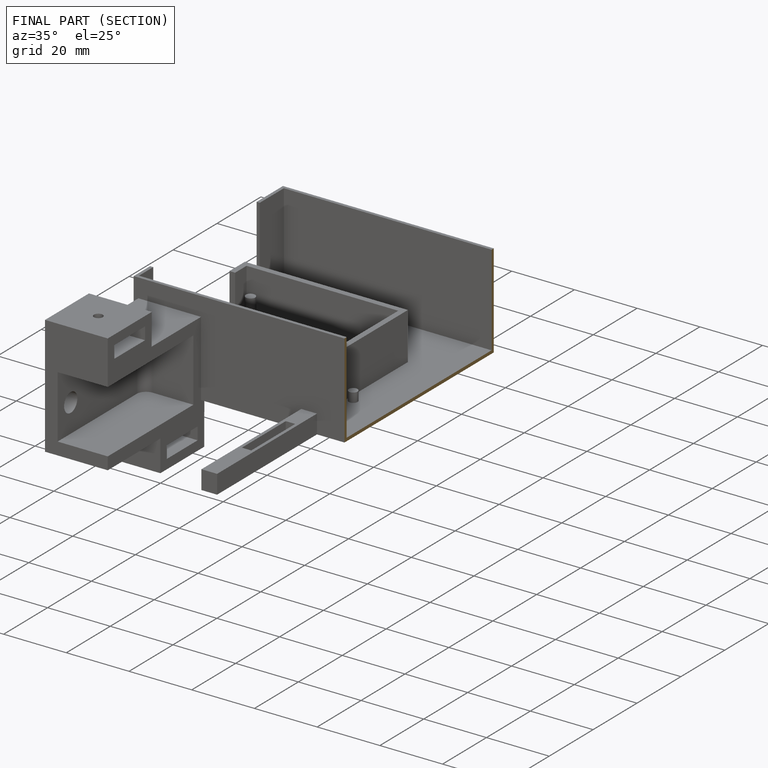
[diagram: finished part — half-section view (interior)]
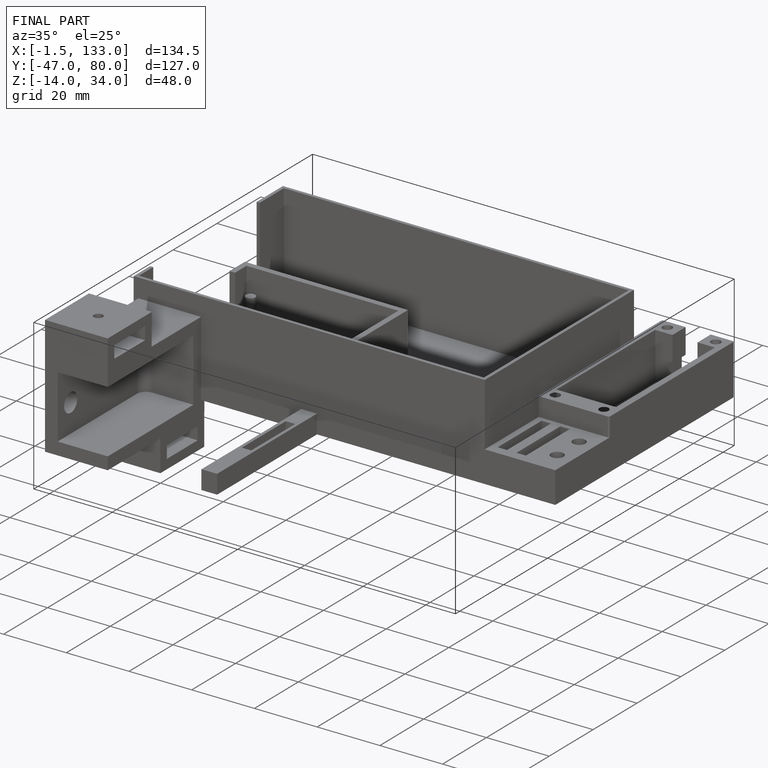
[diagram: finished part — iso view with bounding-box wireframe]
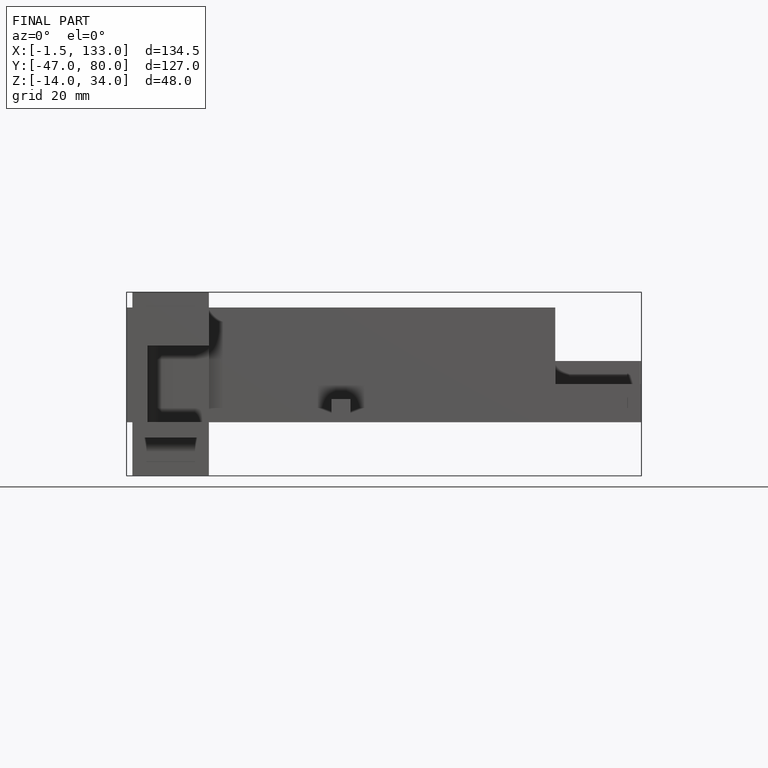
[diagram: finished part — front view with bounding-box wireframe]
